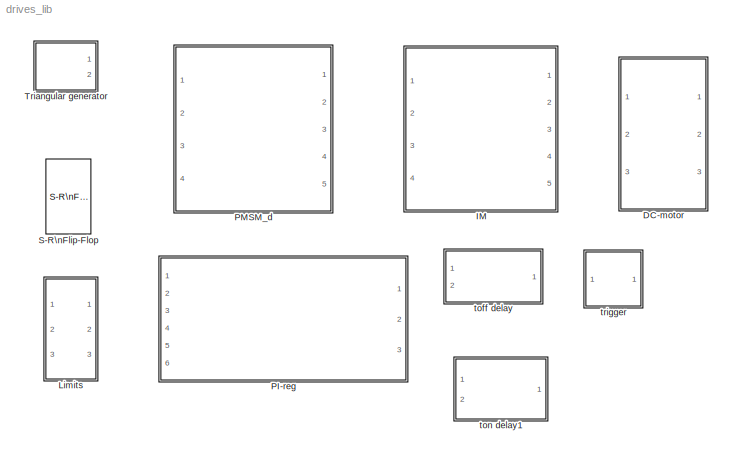
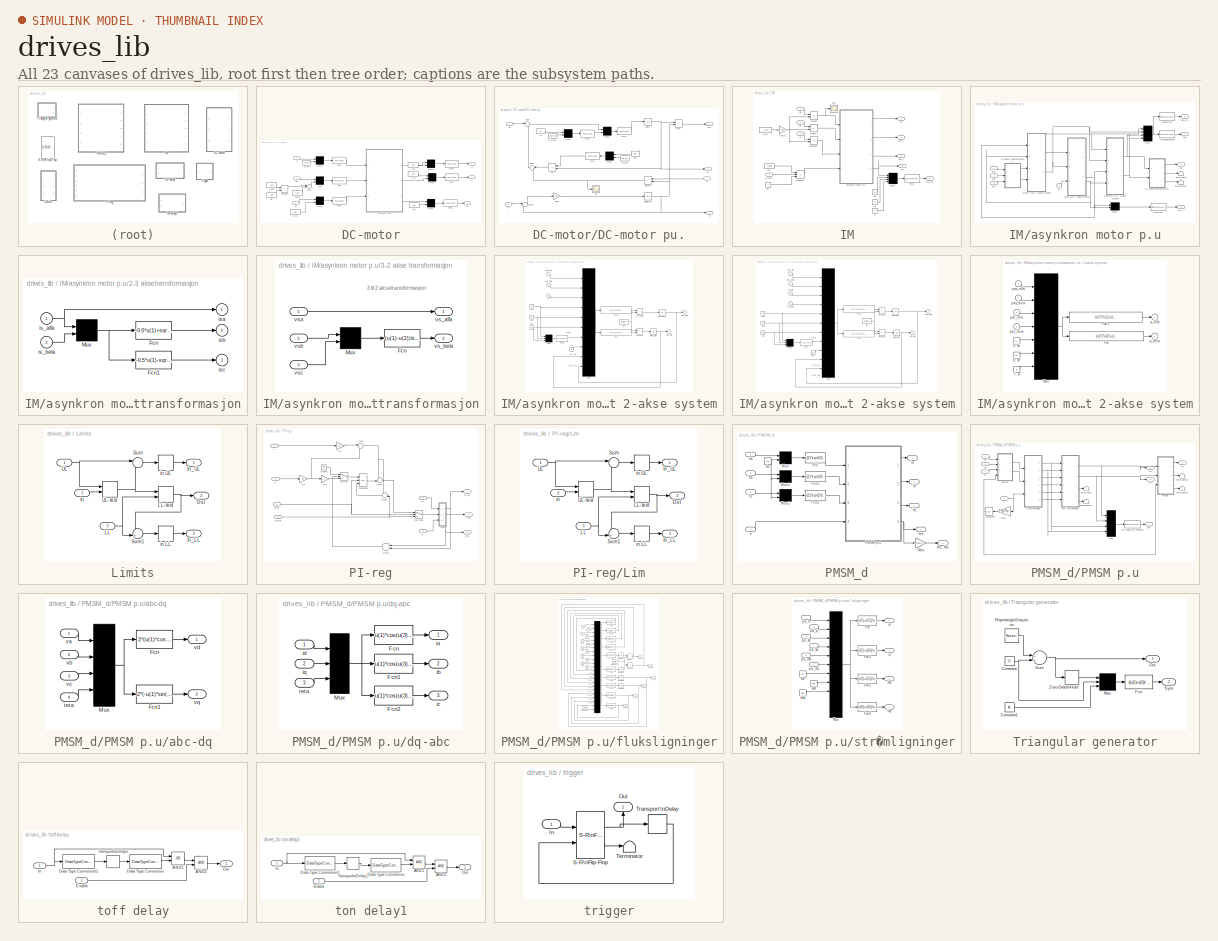
[diagram: thumbnail index - all 23 canvases of the model, root first then tree order]
MODEL drives_lib
KIND library
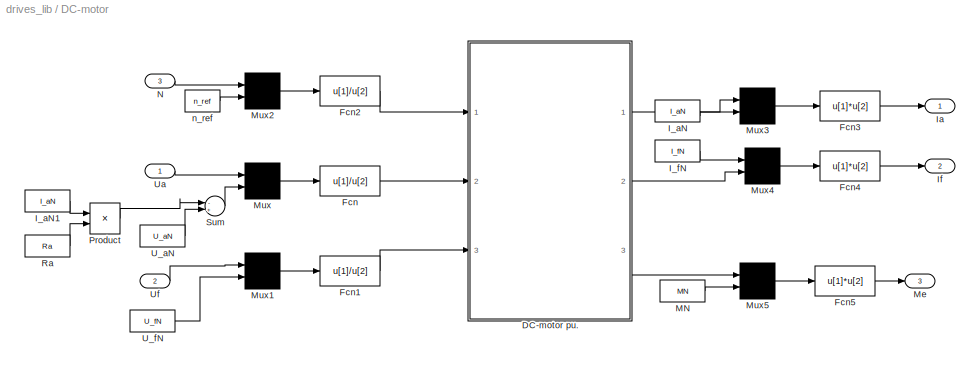
BLOCK [SubSystem] DC-motor
  MaskCallbackString = |||||||||
  MaskDescription = DC-motor med skalering til pu-verdier
  MaskDisplay = text(0.25,0.7,'Likestrøm')\ntext(0.25,0.6,'maskin')\n
  MaskEnableString = on,on,on,on,on,on,on,on,on,on
  MaskIconFrame = on
  MaskIconOpaque = off
  MaskIconRotate = none
  MaskIconUnits = normalized
  MaskPromptString = U_an, anker merkespenning [V]|I_aN, anker merkestrøm [A]|U_fn, felt merkespenning [V]|I_fn, felt merkestrøm [A]|n_ref, merketurtall [o/min]|Ra_ref, basismotstand [ohm]|MN, merkemoment [Nm]|Ra, ankermotstand [ohm]|La, anker induktans [H]|Tf, tidskonstant i feltkrets [sek]
  MaskStyleString = edit,edit,edit,edit,edit,edit,edit,edit,edit,edit
  MaskTabNameString = ,,,,,,,,,
  MaskToolTipString = on,on,on,on,on,on,on,on,on,on
  MaskTunableValueString = on,on,on,on,on,on,on,on,on,on
  MaskValueString = 400|2.5|310|7|1000|160|8|0.5|0.005|0.1
  MaskVarAliasString = ,,,,,,,,,
  MaskVariables = U_aN=@1;I_aN=@2;U_fN=@3;I_fN=@4;n_ref=@5;Ra_ref=@6;MN=@7;Ra=@8;La=@9;Tf=@10;
  MaskVisibilityString = on,on,on,on,on,on,on,on,on,on
  MinAlgLoopOccurrences = off
  Ports = [3, 3]
  RTWSystemCode = Auto
  TreatAsAtomicUnit = off
BLOCK [SubSystem] DC-motor/DC-motor pu.
  MinAlgLoopOccurrences = off
  Ports = [3, 3]
  RTWSystemCode = Auto
  TreatAsAtomicUnit = off
BLOCK [Fcn] DC-motor/DC-motor pu./Fcn2
  Expr = u[1]/u[2]
BLOCK [Fcn] DC-motor/DC-motor pu./Fcn3
  Expr = u[1]/u[2]
BLOCK [Fcn] DC-motor/DC-motor pu./Fcn4
  Expr = u[1]/u[2]
BLOCK [Gain] DC-motor/DC-motor pu./Gain
  Gain = 1/Tf
BLOCK [Constant] DC-motor/DC-motor pu./La
  Value = La
BLOCK [Mux] DC-motor/DC-motor pu./Mux2
  Inputs = 2
  Ports = [2, 1]
BLOCK [Mux] DC-motor/DC-motor pu./Mux3
  Inputs = 2
  Ports = [2, 1]
BLOCK [Mux] DC-motor/DC-motor pu./Mux4
  Inputs = 2
  Ports = [2, 1]
BLOCK [Constant] DC-motor/DC-motor pu./Ra
  Value = Ra
BLOCK [Constant] DC-motor/DC-motor pu./Ra_ref
  Value = Ra_ref
BLOCK [Constant] DC-motor/DC-motor pu./Ra_ref1
  Value = Ra_ref
BLOCK [Sum] DC-motor/DC-motor pu./Sum
  IconShape = round
  Inputs = |+-
  Ports = [2, 1]
BLOCK [Sum] DC-motor/DC-motor pu./Sum2
  IconShape = round
  Inputs = |+-
  Ports = [2, 1]
BLOCK [Sum] DC-motor/DC-motor pu./Sum3
  IconShape = round
  Inputs = |++
  Ports = [2, 1]
BLOCK [Integrator] DC-motor/DC-motor pu./dia//dt
  Ports = [1, 1]
BLOCK [Integrator] DC-motor/DC-motor pu./dpsiaf//dt
  LimitOutput = on
  LowerSaturationLimit = 0
  Ports = [1, 1]
BLOCK [Scope] DC-motor/DC-motor pu./ea
  DataFormat = Structure
  NumInputPorts = 1
  Ports = [1]
  YMax = 2
  YMin = 0
  ZoomMode = yonly
BLOCK [Outport] DC-motor/DC-motor pu./i_f
  IconDisplay = Port number
  Port = 2
BLOCK [Outport] DC-motor/DC-motor pu./ia
  IconDisplay = Port number
BLOCK [Outport] DC-motor/DC-motor pu./me
  IconDisplay = Port number
  Port = 3
BLOCK [Product] DC-motor/DC-motor pu./me1
  Ports = [2, 1]
BLOCK [Inport] DC-motor/DC-motor pu./n
  IconDisplay = Port number
  LatchInput = off
  Port = 1
BLOCK [Product] DC-motor/DC-motor pu./psifa*n
  Ports = [2, 1]
BLOCK [Product] DC-motor/DC-motor pu./ra
  Ports = [2, 1]
BLOCK [Inport] DC-motor/DC-motor pu./ua
  IconDisplay = Port number
  LatchInput = off
  Port = 2
BLOCK [Inport] DC-motor/DC-motor pu./uf
  IconDisplay = Port number
  LatchInput = off
  Port = 3
BLOCK [Fcn] DC-motor/Fcn
  Expr = u[1]/u[2]
BLOCK [Fcn] DC-motor/Fcn1
  Expr = u[1]/u[2]
BLOCK [Fcn] DC-motor/Fcn2
  Expr = u[1]/u[2]
BLOCK [Fcn] DC-motor/Fcn3
  Expr = u[1]*u[2]
BLOCK [Fcn] DC-motor/Fcn4
  Expr = u[1]*u[2]
BLOCK [Fcn] DC-motor/Fcn5
  Expr = u[1]*u[2]
BLOCK [Constant] DC-motor/I_aN
  Value = I_aN
BLOCK [Constant] DC-motor/I_aN1
  Value = I_aN
BLOCK [Constant] DC-motor/I_fN
  Value = I_fN
BLOCK [Outport] DC-motor/Ia
  IconDisplay = Port number
  InitialOutput = 0
BLOCK [Outport] DC-motor/If
  IconDisplay = Port number
  InitialOutput = 0
  Port = 2
BLOCK [Constant] DC-motor/MN
  Value = MN
BLOCK [Outport] DC-motor/Me
  IconDisplay = Port number
  InitialOutput = 0
  Port = 3
BLOCK [Mux] DC-motor/Mux
  Inputs = 2
  Ports = [2, 1]
BLOCK [Mux] DC-motor/Mux1
  Inputs = 2
  Ports = [2, 1]
BLOCK [Mux] DC-motor/Mux2
  Inputs = 2
  Ports = [2, 1]
BLOCK [Mux] DC-motor/Mux3
  Inputs = 2
  Ports = [2, 1]
BLOCK [Mux] DC-motor/Mux4
  Inputs = 2
  Ports = [2, 1]
BLOCK [Mux] DC-motor/Mux5
  Inputs = 2
  Ports = [2, 1]
BLOCK [Inport] DC-motor/N
  IconDisplay = Port number
  LatchInput = off
  Port = 3
BLOCK [Product] DC-motor/Product
  Ports = [2, 1]
BLOCK [Constant] DC-motor/Ra
  Value = Ra
BLOCK [Sum] DC-motor/Sum
  Inputs = -+
  Ports = [2, 1]
BLOCK [Constant] DC-motor/U_aN
  Value = U_aN
BLOCK [Constant] DC-motor/U_fN
  Value = U_fN
BLOCK [Inport] DC-motor/Ua
  IconDisplay = Port number
  LatchInput = off
  Port = 1
BLOCK [Inport] DC-motor/Uf
  IconDisplay = Port number
  LatchInput = off
  Port = 2
BLOCK [Constant] DC-motor/n_ref
  Value = n_ref
BLOCK [SubSystem] IM
  MaskCallbackString = ||||||||
  MaskDescription = Denne modulen er en asynkronmotormodul (kortslutningsmotor).\nModulen er basert paa invers-gamma transformasjonen.\nTilstandsvariable er stator strom i alfa og beta akse, og\nrotor fluks i alfa og beta akse.
  MaskDisplay = text(0.20,0.9,'Induction machine')\n\n\nplot([0.2500    0.2600    0.2700    0.2900    0.3100    0.3300    0.3600    0.3900    0.4200    0.4600    0.5000    0.5400    0.5800    0.6100    0.6400    0.6700    0.6900    0.7100    0.7300    0.7400    0.7500], [0.6000    0.6700    0.6980    0.7356    0.7625    0.7833    0.8071    0.8245    0.8369    0.8468    0.8500    0.8468    0.8369    0.8245    0.80...<+1659ch>
  MaskEnableString = on,on,on,on,on,on,on,on,on
  MaskIconFrame = on
  MaskIconOpaque = off
  MaskIconRotate = none
  MaskIconUnits = normalized
  MaskPromptString = Sn, merkeeffekt [VA]|Un, merke linjespenning [V]|fn, merkefrevens [Hz]|p, antall polpar|rs, statorresistans [p.u]|rr, rotorresistans [p.u]|xh, magnetiseringsresistans [p.u]|xs, statorreaktans|xr, rotorreaktans
  MaskStyleString = edit,edit,edit,edit,edit,edit,edit,edit,edit
  MaskTabNameString = ,,,,,,,,
  MaskToolTipString = on,on,on,on,on,on,on,on,on
  MaskTunableValueString = on,on,on,on,on,on,on,on,on
  MaskValueString = 10000|400|50|2|0.04|0.03|2.273|2.375|2.385
  MaskVarAliasString = ,,,,,,,,
  MaskVariables = Sn=@1;Un=@2;fn=@3;p=@4;rs=@5;rr=@6;xh=@7;xs=@8;xr=@9;
  MaskVisibilityString = on,on,on,on,on,on,on,on,on
  MinAlgLoopOccurrences = off
  Ports = [4, 5]
  RTWSystemCode = Auto
  TreatAsAtomicUnit = off
BLOCK [Constant] IM/1//Un
  Value = 1/Un
BLOCK [Fcn] IM/Fcn1
  Expr = u(1)*u(2)*u(4)/(2*pi*u(3))
BLOCK [Gain] IM/Gain1
  Gain = sqrt(3)/sqrt(2)
BLOCK [Outport] IM/Ia
  IconDisplay = Port number
  InitialOutput = 0
BLOCK [Mux] IM/Mux1
  Ports = [4, 1]
BLOCK [Product] IM/Product
  Ports = [2, 1]
BLOCK [Product] IM/Product1
  Ports = [2, 1]
BLOCK [Product] IM/Product2
  Ports = [2, 1]
BLOCK [Product] IM/Product3
  Inputs = /**
  Ports = [3, 1]
BLOCK [Constant] IM/Sn
  Value = Sn
BLOCK [Inport] IM/Va
  IconDisplay = Port number
  LatchInput = off
  Port = 1
BLOCK [Inport] IM/Vb
  IconDisplay = Port number
  LatchInput = off
  Port = 2
BLOCK [Inport] IM/Vc
  IconDisplay = Port number
  LatchInput = off
  Port = 3
BLOCK [SubSystem] IM/asynkron motor p.u
  MinAlgLoopOccurrences = off
  Ports = [4, 4]
  RTWSystemCode = Auto
  TreatAsAtomicUnit = off
BLOCK [SubSystem] IM/asynkron motor p.u/2-3 aksetransformasjon
  MinAlgLoopOccurrences = off
  Ports = [2, 3]
  RTWSystemCode = Auto
  TreatAsAtomicUnit = off
BLOCK [Fcn] IM/asynkron motor p.u/2-3 aksetransformasjon/Fcn
  Expr = -0.5*u(1)+sqrt(3)*u(2)/2
BLOCK [Fcn] IM/asynkron motor p.u/2-3 aksetransformasjon/Fcn1
  Expr = -0.5*u(1)-sqrt(3)*u(2)/2
BLOCK [Mux] IM/asynkron motor p.u/2-3 aksetransformasjon/Mux
  Inputs = 2
  Ports = [2, 1]
BLOCK [Inport] IM/asynkron motor p.u/2-3 aksetransformasjon/is_alfa
  IconDisplay = Port number
  LatchInput = off
  Port = 1
BLOCK [Inport] IM/asynkron motor p.u/2-3 aksetransformasjon/is_beta
  IconDisplay = Port number
  LatchInput = off
  Port = 2
BLOCK [Outport] IM/asynkron motor p.u/2-3 aksetransformasjon/isa
  IconDisplay = Port number
  InitialOutput = 0
BLOCK [Outport] IM/asynkron motor p.u/2-3 aksetransformasjon/isb
  IconDisplay = Port number
  InitialOutput = 0
  Port = 2
BLOCK [Outport] IM/asynkron motor p.u/2-3 aksetransformasjon/isc
  IconDisplay = Port number
  InitialOutput = 0
  Port = 3
BLOCK [SubSystem] IM/asynkron motor p.u/3-2 akse transformasjon
  MinAlgLoopOccurrences = off
  Ports = [3, 2]
  RTWSystemCode = Auto
  TreatAsAtomicUnit = off
BLOCK [Fcn] IM/asynkron motor p.u/3-2 akse transformasjon/Fcn
  Expr = (u(1)-u(2))/sqrt(3)
BLOCK [Mux] IM/asynkron motor p.u/3-2 akse transformasjon/Mux
  Inputs = 2
  Ports = [2, 1]
BLOCK [Outport] IM/asynkron motor p.u/3-2 akse transformasjon/vs_alfa
  IconDisplay = Port number
  InitialOutput = 0
BLOCK [Outport] IM/asynkron motor p.u/3-2 akse transformasjon/vs_beta
  IconDisplay = Port number
  InitialOutput = 0
  Port = 2
BLOCK [Inport] IM/asynkron motor p.u/3-2 akse transformasjon/vsa
  IconDisplay = Port number
  LatchInput = off
  Port = 1
BLOCK [Inport] IM/asynkron motor p.u/3-2 akse transformasjon/vsb
  IconDisplay = Port number
  LatchInput = off
  Port = 2
BLOCK [Inport] IM/asynkron motor p.u/3-2 akse transformasjon/vsc
  IconDisplay = Port number
  LatchInput = off
  Port = 3
BLOCK [Mux] IM/asynkron motor p.u/Mux
  Ports = [4, 1]
BLOCK [Mux] IM/asynkron motor p.u/Mux1
  Inputs = 2
  Ports = [2, 1]
BLOCK [Terminator] IM/asynkron motor p.u/Terminator
BLOCK [Terminator] IM/asynkron motor p.u/Terminator1
BLOCK [Outport] IM/asynkron motor p.u/isa
  IconDisplay = Port number
  InitialOutput = 0
BLOCK [Fcn] IM/asynkron motor p.u/luftgapmoment 
  Expr = u(1)*u(4)-u(2)*u(3)
BLOCK [Outport] IM/asynkron motor p.u/me
  IconDisplay = Port number
  InitialOutput = 0
  Port = 4
BLOCK [Inport] IM/asynkron motor p.u/n
  IconDisplay = Port number
  LatchInput = off
  Port = 4
BLOCK [Outport] IM/asynkron motor p.u/psi_r
  IconDisplay = Port number
  InitialOutput = 0
  Port = 3
BLOCK [Outport] IM/asynkron motor p.u/psi_s\n
  IconDisplay = Port number
  InitialOutput = 0
  Port = 2
BLOCK [Fcn] IM/asynkron motor p.u/rotorflux
  Expr = sqrt(u(1)*u(1)+u(2)*u(2))
BLOCK [SubSystem] IM/asynkron motor p.u/rotorflux i 2-akse system
  MinAlgLoopOccurrences = off
  Ports = [3, 2]
  RTWSystemCode = Auto
  TreatAsAtomicUnit = off
BLOCK [Constant] IM/asynkron motor p.u/rotorflux i 2-akse system/4: xh
  Value = xh
BLOCK [Constant] IM/asynkron motor p.u/rotorflux i 2-akse system/5 :xr
  Value = xr
BLOCK [Constant] IM/asynkron motor p.u/rotorflux i 2-akse system/6: xs
  Value = xs
BLOCK [Constant] IM/asynkron motor p.u/rotorflux i 2-akse system/8: rr
  Value = rr
BLOCK [Fcn] IM/asynkron motor p.u/rotorflux i 2-akse system/Fcn
  Expr = -u(8)*u(9)/(u(7)*u(5))-u(3)*u(10)+u(8)*u(4)*u(1)/(u(7)*u(5)*u(6))
BLOCK [Fcn] IM/asynkron motor p.u/rotorflux i 2-akse system/Fcn2
  Expr = -u(8)*u(10)/(u(7)*u(5))+u(3)*u(9)+u(8)*u(4)*u(2)/(u(7)*u(5)*u(6))
BLOCK [Fcn] IM/asynkron motor p.u/rotorflux i 2-akse system/Fcn3
  Expr = 1-(u(1)*u(1)/(u(2)*u(3)))
BLOCK [Integrator] IM/asynkron motor p.u/rotorflux i 2-akse system/Integrator
  Ports = [1, 1]
BLOCK [Integrator] IM/asynkron motor p.u/rotorflux i 2-akse system/Integrator1
  Ports = [1, 1]
BLOCK [Mux] IM/asynkron motor p.u/rotorflux i 2-akse system/Mux
  Inputs = 10
  Ports = [10, 1]
BLOCK [Mux] IM/asynkron motor p.u/rotorflux i 2-akse system/Mux1
  Inputs = 3
  Ports = [3, 1]
BLOCK [Product] IM/asynkron motor p.u/rotorflux i 2-akse system/Product
  Ports = [2, 1]
BLOCK [Product] IM/asynkron motor p.u/rotorflux i 2-akse system/Product1
  Ports = [2, 1]
BLOCK [Inport] IM/asynkron motor p.u/rotorflux i 2-akse system/n
  IconDisplay = Port number
  LatchInput = off
  Port = 3
BLOCK [Outport] IM/asynkron motor p.u/rotorflux i 2-akse system/psir_alfa
  IconDisplay = Port number
  InitialOutput = 0
BLOCK [Outport] IM/asynkron motor p.u/rotorflux i 2-akse system/psir_beta
  IconDisplay = Port number
  InitialOutput = 0
  Port = 2
BLOCK [Inport] IM/asynkron motor p.u/rotorflux i 2-akse system/psis_alfa
  IconDisplay = Port number
  LatchInput = off
  Port = 1
BLOCK [Inport] IM/asynkron motor p.u/rotorflux i 2-akse system/psis_beta
  IconDisplay = Port number
  LatchInput = off
  Port = 2
BLOCK [Constant] IM/asynkron motor p.u/rotorflux i 2-akse system/wn
  Value = 2*pi*fn
BLOCK [SubSystem] IM/asynkron motor p.u/stator flux i 2-akse system
  MinAlgLoopOccurrences = off
  Ports = [4, 2]
  RTWSystemCode = Auto
  TreatAsAtomicUnit = off
BLOCK [Constant] IM/asynkron motor p.u/stator flux i 2-akse system/5: xh
  Value = xh
BLOCK [Constant] IM/asynkron motor p.u/stator flux i 2-akse system/6 :xr
  Value = xr
BLOCK [Constant] IM/asynkron motor p.u/stator flux i 2-akse system/7: xs
  Value = xs
BLOCK [Constant] IM/asynkron motor p.u/stator flux i 2-akse system/9: rs
  Value = rs
BLOCK [Fcn] IM/asynkron motor p.u/stator flux i 2-akse system/Fcn
  Expr = u(3)-u(9)*u(10)/(u(8)*u(7))+u(9)*u(5)*u(1)/(u(8)*u(7)*u(6))
BLOCK [Fcn] IM/asynkron motor p.u/stator flux i 2-akse system/Fcn2
  Expr = u(4)-u(9)*u(11)/(u(8)*u(7))+u(9)*u(5)*u(2)/(u(8)*u(7)*u(6))
BLOCK [Fcn] IM/asynkron motor p.u/stator flux i 2-akse system/Fcn3
  Expr = 1-(u(1)*u(1)/(u(2)*u(3)))
BLOCK [Integrator] IM/asynkron motor p.u/stator flux i 2-akse system/Integrator
  Ports = [1, 1]
BLOCK [Integrator] IM/asynkron motor p.u/stator flux i 2-akse system/Integrator1
  Ports = [1, 1]
BLOCK [Mux] IM/asynkron motor p.u/stator flux i 2-akse system/Mux
  Inputs = 11
  Ports = [11, 1]
BLOCK [Mux] IM/asynkron motor p.u/stator flux i 2-akse system/Mux1
  Inputs = 3
  Ports = [3, 1]
BLOCK [Product] IM/asynkron motor p.u/stator flux i 2-akse system/Product
  Ports = [2, 1]
BLOCK [Product] IM/asynkron motor p.u/stator flux i 2-akse system/Product1
  Ports = [2, 1]
BLOCK [Inport] IM/asynkron motor p.u/stator flux i 2-akse system/psir_alfa
  IconDisplay = Port number
  LatchInput = off
  Port = 1
BLOCK [Inport] IM/asynkron motor p.u/stator flux i 2-akse system/psir_beta
  IconDisplay = Port number
  LatchInput = off
  Port = 2
BLOCK [Outport] IM/asynkron motor p.u/stator flux i 2-akse system/psis_alfa
  IconDisplay = Port number
  InitialOutput = 0
BLOCK [Outport] IM/asynkron motor p.u/stator flux i 2-akse system/psis_beta
  IconDisplay = Port number
  InitialOutput = 0
  Port = 2
BLOCK [Inport] IM/asynkron motor p.u/stator flux i 2-akse system/vs_alfa
  IconDisplay = Port number
  LatchInput = off
  Port = 3
BLOCK [Inport] IM/asynkron motor p.u/stator flux i 2-akse system/vs_beta
  IconDisplay = Port number
  LatchInput = off
  Port = 4
BLOCK [Constant] IM/asynkron motor p.u/stator flux i 2-akse system/wn
  Value = 2*pi*fn
BLOCK [Fcn] IM/asynkron motor p.u/statorflux
  Expr = sqrt(u(1)*u(1)+u(2)*u(2))
BLOCK [SubSystem] IM/asynkron motor p.u/statorstrøm i  2-akse system
  MinAlgLoopOccurrences = off
  Ports = [4, 2]
  RTWSystemCode = Auto
  TreatAsAtomicUnit = off
BLOCK [Constant] IM/asynkron motor p.u/statorstrøm i  2-akse system/5: xs
  Value = xs
BLOCK [Constant] IM/asynkron motor p.u/statorstrøm i  2-akse system/6: xh
  Value = xh
BLOCK [Constant] IM/asynkron motor p.u/statorstrøm i  2-akse system/7: xr
  Value = xr
BLOCK [Fcn] IM/asynkron motor p.u/statorstrøm i  2-akse system/Fcn
  Expr = (u(7)*u(2)-u(6)*u(4))/(u(5)*u(7)-u(6)*u(6))
BLOCK [Fcn] IM/asynkron motor p.u/statorstrøm i  2-akse system/Fcn1
  Expr = (u(7)*u(1)-u(6)*u(3))/(u(5)*u(7)-u(6)*u(6))
BLOCK [Mux] IM/asynkron motor p.u/statorstrøm i  2-akse system/Mux
  Inputs = 7
  Ports = [7, 1]
BLOCK [Outport] IM/asynkron motor p.u/statorstrøm i  2-akse system/is_alfa
  IconDisplay = Port number
  InitialOutput = 0
BLOCK [Outport] IM/asynkron motor p.u/statorstrøm i  2-akse system/is_beta
  IconDisplay = Port number
  InitialOutput = 0
  Port = 2
BLOCK [Inport] IM/asynkron motor p.u/statorstrøm i  2-akse system/psir_alfa
  IconDisplay = Port number
  LatchInput = off
  Port = 3
BLOCK [Inport] IM/asynkron motor p.u/statorstrøm i  2-akse system/psir_beta
  IconDisplay = Port number
  LatchInput = off
  Port = 4
BLOCK [Inport] IM/asynkron motor p.u/statorstrøm i  2-akse system/psis_alfa
  IconDisplay = Port number
  LatchInput = off
  Port = 1
BLOCK [Inport] IM/asynkron motor p.u/statorstrøm i  2-akse system/psis_beta
  IconDisplay = Port number
  LatchInput = off
  Port = 2
BLOCK [Inport] IM/asynkron motor p.u/vsa
  IconDisplay = Port number
  LatchInput = off
  Port = 1
BLOCK [Inport] IM/asynkron motor p.u/vsb
  IconDisplay = Port number
  LatchInput = off
  Port = 2
BLOCK [Inport] IM/asynkron motor p.u/vsc
  IconDisplay = Port number
  LatchInput = off
  Port = 3
BLOCK [Constant] IM/fn
  Value = fn
BLOCK [Outport] IM/me
  IconDisplay = Port number
  InitialOutput = 0
  Port = 4
BLOCK [Outport] IM/me_Nm
  IconDisplay = Port number
  InitialOutput = 0
  Port = 5
BLOCK [Inport] IM/n_rad//s
  IconDisplay = Port number
  LatchInput = off
  Port = 4
BLOCK [Constant] IM/p
  Value = p
BLOCK [Constant] IM/p1
  Value = p
BLOCK [Outport] IM/psi_r
  IconDisplay = Port number
  InitialOutput = 0
  Port = 3
BLOCK [Outport] IM/psi_s
  IconDisplay = Port number
  InitialOutput = 0
  Port = 2
BLOCK [Scope] IM/vsa
  DataFormat = Array
  NumInputPorts = 1
  Ports = [1]
  TickLabels = on
  YMax = 15
  YMin = -25
  ZoomMode = xonly
BLOCK [Constant] IM/wn
  Value = 2*pi*fn
BLOCK [SubSystem] Limits
  MaskDisplay = plot([0.3 0.5 0.7 0.3], [0.1 0.3  0.1 0.1])\nplot([0.3 0.5 0.7 0.3], [0.9 0.7  0.9 0.9])
  MaskIconFrame = on
  MaskIconOpaque = on
  MaskIconRotate = none
  MaskIconUnits = normalized
  MinAlgLoopOccurrences = off
  Ports = [3, 3]
  RTWSystemCode = Auto
  TreatAsAtomicUnit = off
BLOCK [Inport] Limits/In
  IconDisplay = Port number
  LatchInput = off
  Port = 2
BLOCK [Outport] Limits/In_LL
  IconDisplay = Port number
  Port = 3
BLOCK [Outport] Limits/In_UL
  IconDisplay = Port number
BLOCK [Inport] Limits/LL
  IconDisplay = Port number
  LatchInput = off
  Port = 3
BLOCK [MinMax] Limits/LL-test
  Function = max
  Inputs = 2
  Ports = [2, 1]
BLOCK [Outport] Limits/Out
  IconDisplay = Port number
  Port = 2
BLOCK [Sum] Limits/Sum
  IconShape = round
  Inputs = |-+
  Ports = [2, 1]
BLOCK [Sum] Limits/Sum1
  IconShape = round
  Inputs = -+|
  Ports = [2, 1]
BLOCK [Inport] Limits/UL
  IconDisplay = Port number
  LatchInput = off
  Port = 1
BLOCK [MinMax] Limits/UL-test
  Function = min
  Inputs = 2
  Ports = [2, 1]
BLOCK [Relay] Limits/in LL
  OffSwitchValue = -eps
  OnSwitchValue = 0
BLOCK [Relay] Limits/in UL
  OffSwitchValue = -eps
  OnSwitchValue = 0
BLOCK [SubSystem] PI-reg
  MaskCallbackString = ||
  MaskDisplay = plot([0.2 0.8], [0.1 0.1])\nplot([0.2 0.2], [0.1 0.9])\nplot([0.75 0.8 0.75], [0.15 0.1 0.05])\nplot([0.175 0.2 0.225], [0.79 0.9 0.79])\n\nplot([0.2 0.75], [0.3 0.7])
  MaskEnableString = on,on,on
  MaskIconFrame = on
  MaskIconOpaque = off
  MaskIconRotate = none
  MaskIconUnits = normalized
  MaskPromptString = Kp|Kv|Ti
  MaskStyleString = edit,edit,edit
  MaskTabNameString = ,,
  MaskToolTipString = on,on,on
  MaskTunableValueString = on,on,on
  MaskValueString = 0.3234|0|12e-3
  MaskVarAliasString = ,,
  MaskVariables = Kp=@1;Kv=@2;Ti=@3;
  MaskVisibilityString = on,on,on
  MinAlgLoopOccurrences = off
  Ports = [6, 3]
  RTWSystemCode = Auto
  TreatAsAtomicUnit = off
BLOCK [Gain] PI-reg/1//Ti
  Gain = 1/Ti
BLOCK [Inport] PI-reg/Enbl
  IconDisplay = Port number
  LatchInput = off
  Port = 5
BLOCK [Ground] PI-reg/Ground
BLOCK [Inport] PI-reg/Initval
  IconDisplay = Port number
  LatchInput = off
  Port = 6
BLOCK [Integrator] PI-reg/Integrator
  ExternalReset = rising
  InitialConditionSource = external
  Ports = [3, 1]
BLOCK [Gain] PI-reg/Kp
  Gain = Kp
BLOCK [Gain] PI-reg/Kv
  Gain = Kv
BLOCK [Inport] PI-reg/LL
  IconDisplay = Port number
  LatchInput = off
  Port = 4
BLOCK [SubSystem] PI-reg/Lim
  MaskDisplay = plot([0.3 0.5 0.7 0.3], [0.1 0.3  0.1 0.1])\nplot([0.3 0.5 0.7 0.3], [0.9 0.7  0.9 0.9])
  MaskIconFrame = on
  MaskIconOpaque = on
  MaskIconRotate = none
  MaskIconUnits = normalized
  MinAlgLoopOccurrences = off
  Ports = [3, 3]
  RTWSystemCode = Auto
  TreatAsAtomicUnit = off
BLOCK [Inport] PI-reg/Lim/In
  IconDisplay = Port number
  LatchInput = off
  Port = 2
BLOCK [Outport] PI-reg/Lim/In_LL
  IconDisplay = Port number
  Port = 3
BLOCK [Outport] PI-reg/Lim/In_UL
  IconDisplay = Port number
BLOCK [Inport] PI-reg/Lim/LL
  IconDisplay = Port number
  LatchInput = off
  Port = 3
BLOCK [MinMax] PI-reg/Lim/LL-test
  Function = max
  Inputs = 2
  Ports = [2, 1]
BLOCK [Outport] PI-reg/Lim/Out
  IconDisplay = Port number
  Port = 2
BLOCK [Sum] PI-reg/Lim/Sum
  IconShape = round
  Inputs = |-+
  Ports = [2, 1]
BLOCK [Sum] PI-reg/Lim/Sum1
  IconShape = round
  Inputs = -+|
  Ports = [2, 1]
BLOCK [Inport] PI-reg/Lim/UL
  IconDisplay = Port number
  LatchInput = off
  Port = 1
BLOCK [MinMax] PI-reg/Lim/UL-test
  Function = min
  Inputs = 2
  Ports = [2, 1]
BLOCK [Relay] PI-reg/Lim/in LL
  OffSwitchValue = -eps
  OnSwitchValue = 0
BLOCK [Relay] PI-reg/Lim/in UL
  OffSwitchValue = -eps
  OnSwitchValue = 0
BLOCK [Outport] PI-reg/Out
  IconDisplay = Port number
  Port = 2
BLOCK [Sum] PI-reg/Sum
  IconShape = round
  Inputs = |++
  Ports = [2, 1]
BLOCK [Sum] PI-reg/Sum1
  IconShape = round
  Inputs = ++|
  Ports = [2, 1]
BLOCK [Sum] PI-reg/Sum2
  IconShape = round
  Inputs = -+|
  Ports = [2, 1]
BLOCK [Sum] PI-reg/Sum3
  Inputs = ++|
  Ports = [2, 1]
BLOCK [Switch] PI-reg/Switch
  Threshold = 0.1
BLOCK [Switch] PI-reg/Switch1
  Threshold = 0.5
BLOCK [Inport] PI-reg/UL
  IconDisplay = Port number
  LatchInput = off
  Port = 3
BLOCK [Inport] PI-reg/e
  IconDisplay = Port number
  LatchInput = off
  Port = 1
BLOCK [Outport] PI-reg/in_LL
  IconDisplay = Port number
  Port = 3
BLOCK [Outport] PI-reg/in_UL
  IconDisplay = Port number
BLOCK [Inport] PI-reg/v
  IconDisplay = Port number
  LatchInput = off
  Port = 2
BLOCK [SubSystem] PMSM_d
  MaskCallbackString = ||||||||||||
  MaskDescription = dq-transformert modell av en permanentmagnetisert\nsynkronmotor (PMSM) med dempeviklinger.
  MaskDisplay = text(0.15,0.9,'PM Synch. Machine')\ntext(0.2,0.25,'w/damperwindings')\n\nplot([0.2500    0.2600    0.2700    0.2900    0.3100    0.3300    0.3600    0.3900    0.4200    0.4600    0.5000    0.5400    0.5800    0.6100    0.6400    0.6700    0.6900    0.7100    0.7300    0.7400    0.7500], [0.6000    0.6700    0.6980    0.7356    0.7625    0.7833    0.8071    0.8245    0.8369    0.8468    0.8500    0...<+1692ch>
  MaskEnableString = on,on,on,on,on,on,on,on,on,on,on,on,on
  MaskIconFrame = on
  MaskIconOpaque = off
  MaskIconRotate = none
  MaskIconUnits = normalized
  MaskPromptString = Sn, merkeeffekt [VA]|p, antall polpar|Un, merkespenning (line-line rms) [V]|fn, merkefrekvens [Hz]|xd, reaktans i d-akse [p.u]|xq, reaktans i q-akse [p.u]|x_ls, lekkreaktans i stator [p.u]|x_lkd, lekkreaktans i dempevikl. d-akse [p.u]|x_lkq, lekkreaktans i dempevikl. q-akse [p.u]|rs, pr. fase statorresistans [p.u]|r_kd, resistans i dempevikl. d-akse [p.u]|r_kq, resistans i dempevikl. q-akse [p.u]|...<+35ch>
  MaskStyleString = edit,edit,edit,edit,edit,edit,edit,edit,edit,edit,edit,edit,edit
  MaskTabNameString = ,,,,,,,,,,,,
  MaskToolTipString = on,on,on,on,on,on,on,on,on,on,on,on,on
  MaskTunableValueString = on,on,on,on,on,on,on,on,on,on,on,on,on
  MaskValueString = 3000|4|230|50|0.5|1.0|0.06|0.15|0.15|0.02|0.05|0.1|1.0
  MaskVarAliasString = ,,,,,,,,,,,,
  MaskVariables = Sn=@1;p=@2;Un=@3;fn=@4;xd=@5;xq=@6;xls=@7;xlkd=@8;xlkq=@9;rs=@10;rkd=@11;rkq=@12;im=@13;
  MaskVisibilityString = on,on,on,on,on,on,on,on,on,on,on,on,on
  MinAlgLoopOccurrences = off
  Ports = [4, 5]
  RTWSystemCode = Auto
  TreatAsAtomicUnit = off
BLOCK [Fcn] PMSM_d/Fcn
  Expr = u(1)*sqrt(3)/(sqrt(2)*u(2))
BLOCK [Fcn] PMSM_d/Fcn1
  Expr = u(1)*sqrt(3)/(sqrt(2)*u(2))
BLOCK [Fcn] PMSM_d/Fcn2
  Expr = u(1)*sqrt(3)/(sqrt(2)*u(2))
BLOCK [Gain] PMSM_d/Gain
  Gain = Sn*p/(2*pi*fn)
BLOCK [Outport] PMSM_d/Me_Nm
  IconDisplay = Port number
  InitialOutput = 0
  Port = 5
BLOCK [Mux] PMSM_d/Mux
  Inputs = 2
  Ports = [2, 1]
BLOCK [Mux] PMSM_d/Mux1
  Inputs = 2
  Ports = [2, 1]
BLOCK [Mux] PMSM_d/Mux2
  Inputs = 2
  Ports = [2, 1]
BLOCK [SubSystem] PMSM_d/PMSM p.u
  MinAlgLoopOccurrences = off
  Ports = [4, 4]
  RTWSystemCode = Auto
  TreatAsAtomicUnit = off
BLOCK [Gain] PMSM_d/PMSM p.u/Gain
  Gain = 2*pi*fn
BLOCK [Integrator] PMSM_d/PMSM p.u/Integrator
  Ports = [1, 1]
BLOCK [Mux] PMSM_d/PMSM p.u/Mux
  Ports = [4, 1]
BLOCK [Terminator] PMSM_d/PMSM p.u/Terminator
BLOCK [Terminator] PMSM_d/PMSM p.u/Terminator1
BLOCK [Terminator] PMSM_d/PMSM p.u/Terminator2
BLOCK [Terminator] PMSM_d/PMSM p.u/Terminator3
BLOCK [SubSystem] PMSM_d/PMSM p.u/abc-dq
  MinAlgLoopOccurrences = off
  Ports = [4, 2]
  RTWSystemCode = Auto
  TreatAsAtomicUnit = off
BLOCK [Fcn] PMSM_d/PMSM p.u/abc-dq/Fcn
  Expr = 2*(u(1)*cos(u(4))+u(2)*cos(u(4)-2*pi/3)+u(3)*cos(u(4)+2*pi/3))/3
BLOCK [Fcn] PMSM_d/PMSM p.u/abc-dq/Fcn1
  Expr = 2*(-u(1)*sin(u(4))-u(2)*sin(u(4)-2*pi/3)-u(3)*sin(u(4)+2*pi/3))/3
BLOCK [Mux] PMSM_d/PMSM p.u/abc-dq/Mux
  Ports = [4, 1]
BLOCK [Inport] PMSM_d/PMSM p.u/abc-dq/teta
  IconDisplay = Port number
  LatchInput = off
  Port = 4
BLOCK [Inport] PMSM_d/PMSM p.u/abc-dq/va
  IconDisplay = Port number
  LatchInput = off
  Port = 1
BLOCK [Inport] PMSM_d/PMSM p.u/abc-dq/vb
  IconDisplay = Port number
  LatchInput = off
  Port = 2
BLOCK [Inport] PMSM_d/PMSM p.u/abc-dq/vc
  IconDisplay = Port number
  LatchInput = off
  Port = 3
BLOCK [Outport] PMSM_d/PMSM p.u/abc-dq/vd
  IconDisplay = Port number
  InitialOutput = 0
BLOCK [Outport] PMSM_d/PMSM p.u/abc-dq/vq
  IconDisplay = Port number
  InitialOutput = 0
  Port = 2
BLOCK [SubSystem] PMSM_d/PMSM p.u/dq-abc
  MinAlgLoopOccurrences = off
  Ports = [3, 3]
  RTWSystemCode = Auto
  TreatAsAtomicUnit = off
BLOCK [Fcn] PMSM_d/PMSM p.u/dq-abc/Fcn
  Expr = u(1)*cos(u(3))-u(2)*sin(u(3))
BLOCK [Fcn] PMSM_d/PMSM p.u/dq-abc/Fcn1
  Expr = u(1)*cos(u(3)-2*pi/3)-u(2)*sin(u(3)-2*pi/3)
BLOCK [Fcn] PMSM_d/PMSM p.u/dq-abc/Fcn2
  Expr = u(1)*cos(u(3)+2*pi/3)-u(2)*sin(u(3)+2*pi/3)
BLOCK [Mux] PMSM_d/PMSM p.u/dq-abc/Mux
  Inputs = 3
  Ports = [3, 1]
BLOCK [Outport] PMSM_d/PMSM p.u/dq-abc/ia
  IconDisplay = Port number
  InitialOutput = 0
BLOCK [Outport] PMSM_d/PMSM p.u/dq-abc/ib
  IconDisplay = Port number
  InitialOutput = 0
  Port = 2
BLOCK [Outport] PMSM_d/PMSM p.u/dq-abc/ic
  IconDisplay = Port number
  InitialOutput = 0
  Port = 3
BLOCK [Inport] PMSM_d/PMSM p.u/dq-abc/id
  IconDisplay = Port number
  LatchInput = off
  Port = 1
BLOCK [Inport] PMSM_d/PMSM p.u/dq-abc/iq
  IconDisplay = Port number
  LatchInput = off
  Port = 2
BLOCK [Inport] PMSM_d/PMSM p.u/dq-abc/teta
  IconDisplay = Port number
  LatchInput = off
  Port = 3
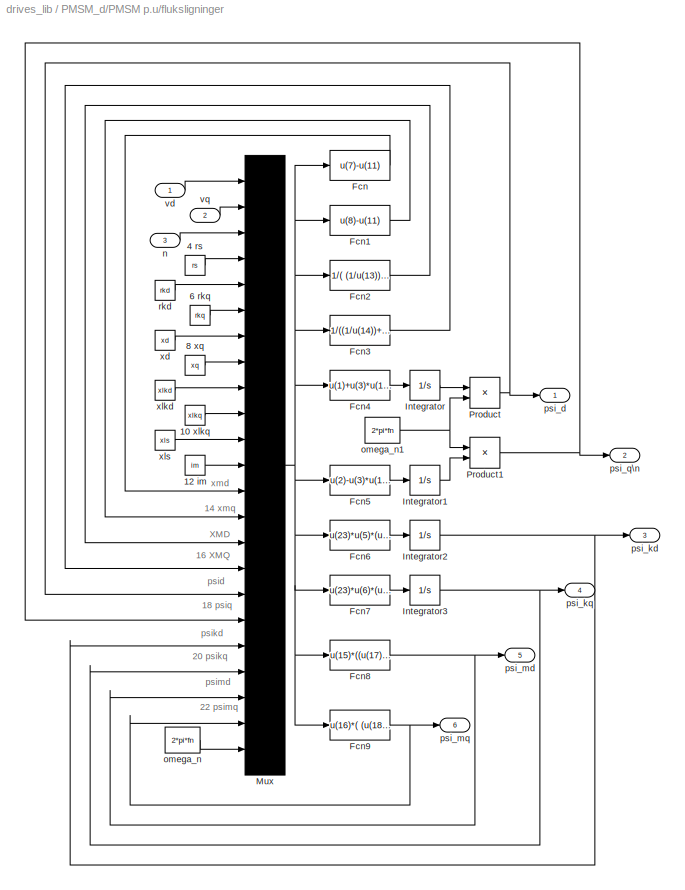
BLOCK [SubSystem] PMSM_d/PMSM p.u/fluksligninger
  MinAlgLoopOccurrences = off
  Ports = [3, 6]
  RTWSystemCode = Auto
  TreatAsAtomicUnit = off
BLOCK [Constant] PMSM_d/PMSM p.u/fluksligninger/  xlkd
  Value = xlkd
BLOCK [Constant] PMSM_d/PMSM p.u/fluksligninger/  xls
  Value = xls
BLOCK [Constant] PMSM_d/PMSM p.u/fluksligninger/ rkd
  Value = rkd
BLOCK [Constant] PMSM_d/PMSM p.u/fluksligninger/ xd
  Value = xd
BLOCK [Constant] PMSM_d/PMSM p.u/fluksligninger/10 xlkq
  Value = xlkq
BLOCK [Constant] PMSM_d/PMSM p.u/fluksligninger/12 im
  Value = im
BLOCK [Constant] PMSM_d/PMSM p.u/fluksligninger/4 rs
  Value = rs
BLOCK [Constant] PMSM_d/PMSM p.u/fluksligninger/6 rkq
  Value = rkq
BLOCK [Constant] PMSM_d/PMSM p.u/fluksligninger/8 xq
  Value = xq
BLOCK [Fcn] PMSM_d/PMSM p.u/fluksligninger/Fcn
  Expr = u(7)-u(11)
BLOCK [Fcn] PMSM_d/PMSM p.u/fluksligninger/Fcn1
  Expr = u(8)-u(11)
BLOCK [Fcn] PMSM_d/PMSM p.u/fluksligninger/Fcn2
  Expr = 1/( (1/u(13))+(1/u(9))+(1/u(11)) )
BLOCK [Fcn] PMSM_d/PMSM p.u/fluksligninger/Fcn3
  Expr = 1/((1/u(14))+(1/u(10))+(1/u(11)))
BLOCK [Fcn] PMSM_d/PMSM p.u/fluksligninger/Fcn4
  Expr = u(1)+u(3)*u(18)+u(4)*(u(21)-u(17))/u(11)
BLOCK [Fcn] PMSM_d/PMSM p.u/fluksligninger/Fcn5
  Expr = u(2)-u(3)*u(17)+u(4)*(u(22)-u(18))/u(11)
BLOCK [Fcn] PMSM_d/PMSM p.u/fluksligninger/Fcn6
  Expr = u(23)*u(5)*(u(21)-u(19))/u(9)
BLOCK [Fcn] PMSM_d/PMSM p.u/fluksligninger/Fcn7
  Expr = u(23)*u(6)*(u(22)-u(20))/u(11)
BLOCK [Fcn] PMSM_d/PMSM p.u/fluksligninger/Fcn8
  Expr = u(15)*((u(17)/u(11))+(u(19)/u(9)) +u(12))
BLOCK [Fcn] PMSM_d/PMSM p.u/fluksligninger/Fcn9
  Expr = u(16)*( (u(18)/u(11))+(u(20)/u(10)) )
BLOCK [Integrator] PMSM_d/PMSM p.u/fluksligninger/Integrator
  Ports = [1, 1]
BLOCK [Integrator] PMSM_d/PMSM p.u/fluksligninger/Integrator1
  Ports = [1, 1]
BLOCK [Integrator] PMSM_d/PMSM p.u/fluksligninger/Integrator2
  Ports = [1, 1]
BLOCK [Integrator] PMSM_d/PMSM p.u/fluksligninger/Integrator3
  Ports = [1, 1]
BLOCK [Mux] PMSM_d/PMSM p.u/fluksligninger/Mux
  Inputs = 23
  Ports = [23, 1]
BLOCK [Product] PMSM_d/PMSM p.u/fluksligninger/Product
  Ports = [2, 1]
BLOCK [Product] PMSM_d/PMSM p.u/fluksligninger/Product1
  Ports = [2, 1]
BLOCK [Inport] PMSM_d/PMSM p.u/fluksligninger/n
  IconDisplay = Port number
  LatchInput = off
  Port = 3
BLOCK [Constant] PMSM_d/PMSM p.u/fluksligninger/omega_n
  Value = 2*pi*fn
BLOCK [Constant] PMSM_d/PMSM p.u/fluksligninger/omega_n1
  Value = 2*pi*fn
BLOCK [Outport] PMSM_d/PMSM p.u/fluksligninger/psi_d
  IconDisplay = Port number
  InitialOutput = 0
BLOCK [Outport] PMSM_d/PMSM p.u/fluksligninger/psi_kd
  IconDisplay = Port number
  InitialOutput = 0
  Port = 3
BLOCK [Outport] PMSM_d/PMSM p.u/fluksligninger/psi_kq
  IconDisplay = Port number
  InitialOutput = 0
  Port = 4
BLOCK [Outport] PMSM_d/PMSM p.u/fluksligninger/psi_md
  IconDisplay = Port number
  InitialOutput = 0
  Port = 5
BLOCK [Outport] PMSM_d/PMSM p.u/fluksligninger/psi_mq
  IconDisplay = Port number
  InitialOutput = 0
  Port = 6
BLOCK [Outport] PMSM_d/PMSM p.u/fluksligninger/psi_q\n
  IconDisplay = Port number
  InitialOutput = 0
  Port = 2
BLOCK [Inport] PMSM_d/PMSM p.u/fluksligninger/vd
  IconDisplay = Port number
  LatchInput = off
  Port = 1
BLOCK [Inport] PMSM_d/PMSM p.u/fluksligninger/vq
  IconDisplay = Port number
  LatchInput = off
  Port = 2
BLOCK [Outport] PMSM_d/PMSM p.u/ia
  IconDisplay = Port number
  InitialOutput = 0
BLOCK [Outport] PMSM_d/PMSM p.u/id
  IconDisplay = Port number
  InitialOutput = 0
  Port = 2
BLOCK [Outport] PMSM_d/PMSM p.u/iq
  IconDisplay = Port number
  InitialOutput = 0
  Port = 3
BLOCK [Outport] PMSM_d/PMSM p.u/me
  IconDisplay = Port number
  InitialOutput = 0
  Port = 4
BLOCK [Inport] PMSM_d/PMSM p.u/n
  IconDisplay = Port number
  LatchInput = off
  Port = 4
BLOCK [SubSystem] PMSM_d/PMSM p.u/strømligninger
  MinAlgLoopOccurrences = off
  Ports = [6, 4]
  RTWSystemCode = Auto
  TreatAsAtomicUnit = off
BLOCK [Fcn] PMSM_d/PMSM p.u/strømligninger/Fcn
  Expr = (u(1)-u(5))/u(7)
BLOCK [Fcn] PMSM_d/PMSM p.u/strømligninger/Fcn2
  Expr = (u(2)-u(6))/u(7)
BLOCK [Fcn] PMSM_d/PMSM p.u/strømligninger/Fcn3
  Expr = (u(3)-u(5))/u(8)
BLOCK [Fcn] PMSM_d/PMSM p.u/strømligninger/Fcn4
  Expr = (u(4)-u(6))/u(9)
BLOCK [Mux] PMSM_d/PMSM p.u/strømligninger/Mux
  Inputs = 11
  Ports = [11, 1]
BLOCK [Outport] PMSM_d/PMSM p.u/strømligninger/id
  IconDisplay = Port number
  InitialOutput = 0
BLOCK [Outport] PMSM_d/PMSM p.u/strømligninger/ikd
  IconDisplay = Port number
  InitialOutput = 0
  Port = 3
BLOCK [Outport] PMSM_d/PMSM p.u/strømligninger/ikq
  IconDisplay = Port number
  InitialOutput = 0
  Port = 4
BLOCK [Outport] PMSM_d/PMSM p.u/strømligninger/iq
  IconDisplay = Port number
  InitialOutput = 0
  Port = 2
BLOCK [Inport] PMSM_d/PMSM p.u/strømligninger/psi_d
  IconDisplay = Port number
  LatchInput = off
  Port = 1
BLOCK [Inport] PMSM_d/PMSM p.u/strømligninger/psi_kd
  IconDisplay = Port number
  LatchInput = off
  Port = 3
BLOCK [Inport] PMSM_d/PMSM p.u/strømligninger/psi_kq
  IconDisplay = Port number
  LatchInput = off
  Port = 4
BLOCK [Inport] PMSM_d/PMSM p.u/strømligninger/psi_md
  IconDisplay = Port number
  LatchInput = off
  Port = 5
BLOCK [Inport] PMSM_d/PMSM p.u/strømligninger/psi_mq
  IconDisplay = Port number
  LatchInput = off
  Port = 6
BLOCK [Inport] PMSM_d/PMSM p.u/strømligninger/psi_q
  IconDisplay = Port number
  LatchInput = off
  Port = 2
BLOCK [Constant] PMSM_d/PMSM p.u/strømligninger/xlkd
  Value = xlkd
BLOCK [Constant] PMSM_d/PMSM p.u/strømligninger/xlkq
  Value = xlkq
BLOCK [Constant] PMSM_d/PMSM p.u/strømligninger/xls
  Value = xls
BLOCK [Fcn] PMSM_d/PMSM p.u/tot elektrisk moment
  Expr = u(3)*u(2)-u(4)*u(1)
BLOCK [Inport] PMSM_d/PMSM p.u/va
  IconDisplay = Port number
  LatchInput = off
  Port = 1
BLOCK [Inport] PMSM_d/PMSM p.u/vb
  IconDisplay = Port number
  LatchInput = off
  Port = 2
BLOCK [Inport] PMSM_d/PMSM p.u/vc
  IconDisplay = Port number
  LatchInput = off
  Port = 3
BLOCK [Constant] PMSM_d/Un
  Value = Un
BLOCK [Inport] PMSM_d/Va
  IconDisplay = Port number
  LatchInput = off
  Port = 1
BLOCK [Inport] PMSM_d/Vb
  IconDisplay = Port number
  LatchInput = off
  Port = 2
BLOCK [Inport] PMSM_d/Vc
  IconDisplay = Port number
  LatchInput = off
  Port = 3
BLOCK [Outport] PMSM_d/ia
  IconDisplay = Port number
  InitialOutput = 0
BLOCK [Outport] PMSM_d/id
  IconDisplay = Port number
  InitialOutput = 0
  Port = 2
BLOCK [Outport] PMSM_d/iq
  IconDisplay = Port number
  InitialOutput = 0
  Port = 3
BLOCK [Outport] PMSM_d/me
  IconDisplay = Port number
  InitialOutput = 0
  Port = 4
BLOCK [Inport] PMSM_d/n
  IconDisplay = Port number
  LatchInput = off
  Port = 4
BLOCK [Reference] S-R\nFlip-Flop  REF=simulink_extras/Flip Flops/S-R\nFlip-Flop
  Ports = [2, 2]
  ShowPortLabels = on
  SourceBlock = simulink_extras/Flip Flops/S-R\nFlip-Flop
  SourceType = SRFlipFlop
  initial_condition = 0
BLOCK [SubSystem] Triangular generator
  MaskCallbackString = ||
  MaskDescription = Outputs a triangular waveform between -Amplitude and \n+Amplitude with the set frequency and an optional offset.\nThe sync signal goes high at +Ampl. and low at -Ampl.
  MaskDisplay = plot([0 0.1 0.2 0.3 0.4 0.5 0.6 ],[0 1 0 1 0 1 0])
  MaskEnableString = on,on,on
  MaskIconFrame = on
  MaskIconOpaque = off
  MaskIconRotate = port
  MaskIconUnits = normalized
  MaskPromptString = Frequency [Hz]|Amplitude|Offset
  MaskStyleString = edit,edit,edit
  MaskTabNameString = ,,
  MaskToolTipString = on,on,on
  MaskTunableValueString = on,on,on
  MaskType = Triangular wave generator
  MaskValueString = 1000|1|0
  MaskVarAliasString = ,,
  MaskVariables = ftri=@1;A=@2;O=@3;
  MaskVisibilityString = on,on,on
  MinAlgLoopOccurrences = off
  Ports = [0, 2]
  RTWSystemCode = Auto
  TreatAsAtomicUnit = off
BLOCK [Constant] Triangular generator/Constant
  Value = O
BLOCK [Constant] Triangular generator/Constant1
  Value = A
BLOCK [Fcn] Triangular generator/Fcn
  Expr = ((u(1)-u(2))/(2*u(3)))+0.5
BLOCK [Mux] Triangular generator/Mux
  Inputs = 3
  Ports = [3, 1]
BLOCK [Outport] Triangular generator/Out
  IconDisplay = Port number
BLOCK [Reference] Triangular generator/Repeating\nSequence  REF=simulink3/Sources/Repeating\nSequence
  Ports = [0, 1]
  SourceBlock = simulink3/Sources/Repeating\nSequence
  SourceType = Repeating table
  rep_seq_t = [0 1/(2*ftri) 1/ftri]
  rep_seq_y = [-A  A  -A]
BLOCK [Sum] Triangular generator/Sum
  Ports = [2, 1]
BLOCK [Outport] Triangular generator/Sync
  IconDisplay = Port number
  Port = 2
BLOCK [ZeroOrderHold] Triangular generator/Zero-Order\nHold
  SampleTime = 1/(2*ftri)
BLOCK [SubSystem] toff delay
  MaskDescription = Når inngangen går høy, går utgangen momentant høy. Når inngangen går lav, går utgangen\nlav etter en tidsforsinkelse td. Prosessen overstyres av Enable.
  MaskDisplay = plot([0.3 0.4 0.4 0.6 0.6 0.7 ],[0.7  0.7 1 1 0.7 0.7])\nplot([0.3 0.4 0.4 0.65 0.65 0.7 ],[0.3  0.3 0.6 0.6 0.3 0.3])
  MaskEnableString = on
  MaskIconFrame = on
  MaskIconOpaque = off
  MaskIconRotate = none
  MaskIconUnits = normalized
  MaskPromptString = tidsforsinkelse td [s]:
  MaskStyleString = edit
  MaskToolTipString = on
  MaskTunableValueString = on
  MaskValueString = 0.05
  MaskVariables = td=@1;
  MaskVisibilityString = on
  MinAlgLoopOccurrences = off
  Ports = [2, 1]
  RTWSystemCode = Auto
  TreatAsAtomicUnit = off
BLOCK [Logic] toff delay/AND1
  Operator = OR
  Ports = [2, 1]
BLOCK [Logic] toff delay/AND2
  Ports = [2, 1]
BLOCK [DataTypeConversion] toff delay/Data Type Conversion
  RndMeth = Floor
  SaturateOnIntegerOverflow = off
BLOCK [DataTypeConversion] toff delay/Data Type Conversion1
  RndMeth = Floor
  SaturateOnIntegerOverflow = off
BLOCK [Inport] toff delay/Enable
  IconDisplay = Port number
  LatchInput = off
  Port = 2
BLOCK [Inport] toff delay/In
  IconDisplay = Port number
  LatchInput = off
  Port = 1
BLOCK [Outport] toff delay/Out
  IconDisplay = Port number
BLOCK [TransportDelay] toff delay/Transport\nDelay1
  DelayTime = td
BLOCK [SubSystem] ton delay1
  AncestorBlock = eea_lib/ton delay
  MaskDescription = Når inngangen går høy, går utgangen høy etter en tidsforsinkelse td. Når inngangen går lav, går utgangen\nlavt momentant. Prosessen overstyres av Enable.
  MaskDisplay = plot([0.3 0.4 0.4 0.6 0.6 0.7 ],[0.7  0.7 1 1 0.7 0.7])\nplot([0.3 0.45 0.45 0.6 0.6 0.7 ],[0.3  0.3 0.6 0.6 0.3 0.3])
  MaskEnableString = on
  MaskIconFrame = on
  MaskIconOpaque = off
  MaskIconRotate = none
  MaskIconUnits = normalized
  MaskPromptString = tidsforsinkelse td [s]:
  MaskStyleString = edit
  MaskToolTipString = on
  MaskTunableValueString = on
  MaskValueString = 0.8
  MaskVariables = td=@1;
  MaskVisibilityString = on
  MinAlgLoopOccurrences = off
  Ports = [2, 1]
  RTWSystemCode = Auto
  TreatAsAtomicUnit = off
BLOCK [Logic] ton delay1/AND1
  Ports = [2, 1]
BLOCK [Logic] ton delay1/AND2
  Ports = [2, 1]
BLOCK [DataTypeConversion] ton delay1/Data Type Conversion
  RndMeth = Floor
  SaturateOnIntegerOverflow = off
BLOCK [DataTypeConversion] ton delay1/Data Type Conversion1
  RndMeth = Floor
  SaturateOnIntegerOverflow = off
BLOCK [Inport] ton delay1/Enable
  IconDisplay = Port number
  LatchInput = off
  Port = 2
BLOCK [Inport] ton delay1/In
  IconDisplay = Port number
  LatchInput = off
  Port = 1
BLOCK [Outport] ton delay1/Out
  BusOutputAsStruct = off
  IconDisplay = Port number
BLOCK [TransportDelay] ton delay1/Transport\nDelay1
  DelayTime = td
BLOCK [SubSystem] trigger
  MaskDescription = Når inngangen går høy,\n går utgangen høy i en tid lik ton.
  MaskDisplay = plot([0.1 0.15 0.15 0.20 0.20 0.4  0.45 0.45 0.5 0.5 0.6],[0.7  0.7 1 1 0.7 0.7 0.7 1 1 0.7 0.7])\nplot([0.1 0.15 0.15 0.35 0.35 0.4 0.45 0.45 0.6 ],[0.3 0.3 0.6 0.6 0.3 0.3 0.3 0.6 0.6])\nplot([0.15 0.17],[0.48 0.48])\nplot([0.33 0.35],[0.48 0.48])\ntext(0.21,0.5,'ton')\n
  MaskEnableString = on
  MaskIconFrame = on
  MaskIconOpaque = off
  MaskIconRotate = none
  MaskIconUnits = autoscale
  MaskPromptString = Påtid, ton [s]:
  MaskStyleString = edit
  MaskToolTipString = on
  MaskTunableValueString = on
  MaskVariables = ton=@1;
  MaskVisibilityString = on
  MinAlgLoopOccurrences = off
  Ports = [1, 1]
  RTWSystemCode = Auto
  TreatAsAtomicUnit = off
BLOCK [Inport] trigger/In
  IconDisplay = Port number
  LatchInput = off
  Port = 1
BLOCK [Outport] trigger/Out
  IconDisplay = Port number
BLOCK [Reference] trigger/S-R\nFlip-Flop  REF=simulink_extras/Flip Flops/S-R\nFlip-Flop
  Ports = [2, 2]
  SourceBlock = simulink_extras/Flip Flops/S-R\nFlip-Flop
  SourceType = SRFlipFlop
  initial_condition = 0
BLOCK [Terminator] trigger/Terminator
BLOCK [TransportDelay] trigger/Transport\nDelay
  DelayTime = ton
ANNOTATION IM/asynkron motor p.u/3-2 akse transformasjon: 3 til 2 aksetransformasjon
ANNOTATION IM/asynkron motor p.u/rotorflux i 2-akse system: 10:psir_beta
ANNOTATION IM/asynkron motor p.u/rotorflux i 2-akse system: 7: sigma
ANNOTATION IM/asynkron motor p.u/rotorflux i 2-akse system: 9: psir_alfa
ANNOTATION IM/asynkron motor p.u/stator flux i 2-akse system: 10:psis_alfa
ANNOTATION IM/asynkron motor p.u/stator flux i 2-akse system: 11:psis_beta
ANNOTATION IM/asynkron motor p.u/stator flux i 2-akse system: 8: sigma
ANNOTATION PMSM_d/PMSM p.u/fluksligninger: 20 psikq
ANNOTATION PMSM_d/PMSM p.u/fluksligninger: xmd
ANNOTATION PMSM_d/PMSM p.u/fluksligninger: 14 xmq
ANNOTATION PMSM_d/PMSM p.u/fluksligninger: 16 XMQ
ANNOTATION PMSM_d/PMSM p.u/fluksligninger: 18 psiq
ANNOTATION PMSM_d/PMSM p.u/fluksligninger: 22 psimq
ANNOTATION PMSM_d/PMSM p.u/fluksligninger: XMD
ANNOTATION PMSM_d/PMSM p.u/fluksligninger: psid
ANNOTATION PMSM_d/PMSM p.u/fluksligninger: psikd
ANNOTATION PMSM_d/PMSM p.u/fluksligninger: psimd
LINE DC-motor/DC-motor pu./Fcn2:1 -> DC-motor/DC-motor pu./Mux3:2
LINE DC-motor/DC-motor pu./Fcn3:1 -> DC-motor/DC-motor pu./dia//dt:1
LINE DC-motor/DC-motor pu./Fcn4:1 -> DC-motor/DC-motor pu./ra:1
LINE DC-motor/DC-motor pu./Gain:1 -> DC-motor/DC-motor pu./dpsiaf//dt:1
LINE DC-motor/DC-motor pu./La:1 -> DC-motor/DC-motor pu./Mux2:1
LINE DC-motor/DC-motor pu./Mux2:1 -> DC-motor/DC-motor pu./Fcn2:1
LINE DC-motor/DC-motor pu./Mux3:1 -> DC-motor/DC-motor pu./Fcn3:1
LINE DC-motor/DC-motor pu./Mux4:1 -> DC-motor/DC-motor pu./Fcn4:1
LINE DC-motor/DC-motor pu./Ra:1 -> DC-motor/DC-motor pu./Mux4:1
LINE DC-motor/DC-motor pu./Ra_ref1:1 -> DC-motor/DC-motor pu./Mux2:2
LINE DC-motor/DC-motor pu./Ra_ref:1 -> DC-motor/DC-motor pu./Mux4:2
LINE DC-motor/DC-motor pu./Sum2:1 -> DC-motor/DC-motor pu./Gain:1
LINE DC-motor/DC-motor pu./Sum3:1 -> DC-motor/DC-motor pu./Sum:2
LINE DC-motor/DC-motor pu./Sum:1 -> DC-motor/DC-motor pu./Mux3:1
NET DC-motor/DC-motor pu./dia//dt:1 -> DC-motor/DC-motor pu./ia:1, DC-motor/DC-motor pu./me1:1, DC-motor/DC-motor pu./ra:2
NET DC-motor/DC-motor pu./dpsiaf//dt:1 -> DC-motor/DC-motor pu./Sum2:2, DC-motor/DC-motor pu./i_f:1, DC-motor/DC-motor pu./me1:2, DC-motor/DC-motor pu./psifa*n:2
LINE DC-motor/DC-motor pu./me1:1 -> DC-motor/DC-motor pu./me:1
LINE DC-motor/DC-motor pu./n:1 -> DC-motor/DC-motor pu./psifa*n:1
NET DC-motor/DC-motor pu./psifa*n:1 -> DC-motor/DC-motor pu./Sum3:2, DC-motor/DC-motor pu./ea:1
LINE DC-motor/DC-motor pu./ra:1 -> DC-motor/DC-motor pu./Sum3:1
LINE DC-motor/DC-motor pu./ua:1 -> DC-motor/DC-motor pu./Sum:1
LINE DC-motor/DC-motor pu./uf:1 -> DC-motor/DC-motor pu./Sum2:1
LINE DC-motor/DC-motor pu.:1 -> DC-motor/Mux3:1
LINE DC-motor/DC-motor pu.:2 -> DC-motor/Mux4:2
LINE DC-motor/DC-motor pu.:3 -> DC-motor/Mux5:1
LINE DC-motor/Fcn1:1 -> DC-motor/DC-motor pu.:3
LINE DC-motor/Fcn2:1 -> DC-motor/DC-motor pu.:1
LINE DC-motor/Fcn3:1 -> DC-motor/Ia:1
LINE DC-motor/Fcn4:1 -> DC-motor/If:1
LINE DC-motor/Fcn5:1 -> DC-motor/Me:1
LINE DC-motor/Fcn:1 -> DC-motor/DC-motor pu.:2
LINE DC-motor/I_aN1:1 -> DC-motor/Product:1
LINE DC-motor/I_aN:1 -> DC-motor/Mux3:2
LINE DC-motor/I_fN:1 -> DC-motor/Mux4:1
LINE DC-motor/MN:1 -> DC-motor/Mux5:2
LINE DC-motor/Mux1:1 -> DC-motor/Fcn1:1
LINE DC-motor/Mux2:1 -> DC-motor/Fcn2:1
LINE DC-motor/Mux3:1 -> DC-motor/Fcn3:1
LINE DC-motor/Mux4:1 -> DC-motor/Fcn4:1
LINE DC-motor/Mux5:1 -> DC-motor/Fcn5:1
LINE DC-motor/Mux:1 -> DC-motor/Fcn:1
LINE DC-motor/N:1 -> DC-motor/Mux2:1
LINE DC-motor/Product:1 -> DC-motor/Sum:1
LINE DC-motor/Ra:1 -> DC-motor/Product:2
LINE DC-motor/Sum:1 -> DC-motor/Mux:2
LINE DC-motor/U_aN:1 -> DC-motor/Sum:2
LINE DC-motor/U_fN:1 -> DC-motor/Mux1:2
LINE DC-motor/Ua:1 -> DC-motor/Mux:1
LINE DC-motor/Uf:1 -> DC-motor/Mux1:1
LINE DC-motor/n_ref:1 -> DC-motor/Mux2:2
LINE IM/1//Un:1 -> IM/Gain1:1
LINE IM/Fcn1:1 -> IM/me_Nm:1
NET IM/Gain1:1 -> IM/Product1:2, IM/Product2:2, IM/Product:2
LINE IM/Mux1:1 -> IM/Fcn1:1
LINE IM/Product1:1 -> IM/asynkron motor p.u:2
LINE IM/Product2:1 -> IM/asynkron motor p.u:3
LINE IM/Product3:1 -> IM/asynkron motor p.u:4
NET IM/Product:1 -> IM/asynkron motor p.u:1, IM/vsa:1
LINE IM/Sn:1 -> IM/Mux1:2
LINE IM/Va:1 -> IM/Product:1
LINE IM/Vb:1 -> IM/Product1:1
LINE IM/Vc:1 -> IM/Product2:1
LINE IM/asynkron motor p.u/2-3 aksetransformasjon/Fcn1:1 -> IM/asynkron motor p.u/2-3 aksetransformasjon/isc:1
LINE IM/asynkron motor p.u/2-3 aksetransformasjon/Fcn:1 -> IM/asynkron motor p.u/2-3 aksetransformasjon/isb:1
NET IM/asynkron motor p.u/2-3 aksetransformasjon/Mux:1 -> IM/asynkron motor p.u/2-3 aksetransformasjon/Fcn1:1, IM/asynkron motor p.u/2-3 aksetransformasjon/Fcn:1
NET IM/asynkron motor p.u/2-3 aksetransformasjon/is_alfa:1 -> IM/asynkron motor p.u/2-3 aksetransformasjon/Mux:1, IM/asynkron motor p.u/2-3 aksetransformasjon/isa:1
LINE IM/asynkron motor p.u/2-3 aksetransformasjon/is_beta:1 -> IM/asynkron motor p.u/2-3 aksetransformasjon/Mux:2
LINE IM/asynkron motor p.u/2-3 aksetransformasjon:1 -> IM/asynkron motor p.u/isa:1
LINE IM/asynkron motor p.u/2-3 aksetransformasjon:2 -> IM/asynkron motor p.u/Terminator:1
LINE IM/asynkron motor p.u/2-3 aksetransformasjon:3 -> IM/asynkron motor p.u/Terminator1:1
LINE IM/asynkron motor p.u/3-2 akse transformasjon/Fcn:1 -> IM/asynkron motor p.u/3-2 akse transformasjon/vs_beta:1
LINE IM/asynkron motor p.u/3-2 akse transformasjon/Mux:1 -> IM/asynkron motor p.u/3-2 akse transformasjon/Fcn:1
LINE IM/asynkron motor p.u/3-2 akse transformasjon/vsa:1 -> IM/asynkron motor p.u/3-2 akse transformasjon/vs_alfa:1
LINE IM/asynkron motor p.u/3-2 akse transformasjon/vsb:1 -> IM/asynkron motor p.u/3-2 akse transformasjon/Mux:1
LINE IM/asynkron motor p.u/3-2 akse transformasjon/vsc:1 -> IM/asynkron motor p.u/3-2 akse transformasjon/Mux:2
LINE IM/asynkron motor p.u/3-2 akse transformasjon:1 -> IM/asynkron motor p.u/stator flux i 2-akse system:3
LINE IM/asynkron motor p.u/3-2 akse transformasjon:2 -> IM/asynkron motor p.u/stator flux i 2-akse system:4
LINE IM/asynkron motor p.u/Mux1:1 -> IM/asynkron motor p.u/rotorflux:1
NET IM/asynkron motor p.u/Mux:1 -> IM/asynkron motor p.u/luftgapmoment :1, IM/asynkron motor p.u/statorflux:1
LINE IM/asynkron motor p.u/luftgapmoment :1 -> IM/asynkron motor p.u/me:1
LINE IM/asynkron motor p.u/n:1 -> IM/asynkron motor p.u/rotorflux i 2-akse system:3
NET IM/asynkron motor p.u/rotorflux i 2-akse system/4: xh:1 -> IM/asynkron motor p.u/rotorflux i 2-akse system/Mux1:1, IM/asynkron motor p.u/rotorflux i 2-akse system/Mux:4
NET IM/asynkron motor p.u/rotorflux i 2-akse system/5 :xr:1 -> IM/asynkron motor p.u/rotorflux i 2-akse system/Mux1:2, IM/asynkron motor p.u/rotorflux i 2-akse system/Mux:5
NET IM/asynkron motor p.u/rotorflux i 2-akse system/6: xs:1 -> IM/asynkron motor p.u/rotorflux i 2-akse system/Mux1:3, IM/asynkron motor p.u/rotorflux i 2-akse system/Mux:6
LINE IM/asynkron motor p.u/rotorflux i 2-akse system/8: rr:1 -> IM/asynkron motor p.u/rotorflux i 2-akse system/Mux:8
LINE IM/asynkron motor p.u/rotorflux i 2-akse system/Fcn2:1 -> IM/asynkron motor p.u/rotorflux i 2-akse system/Product1:1
LINE IM/asynkron motor p.u/rotorflux i 2-akse system/Fcn3:1 -> IM/asynkron motor p.u/rotorflux i 2-akse system/Mux:7
LINE IM/asynkron motor p.u/rotorflux i 2-akse system/Fcn:1 -> IM/asynkron motor p.u/rotorflux i 2-akse system/Product:2
NET IM/asynkron motor p.u/rotorflux i 2-akse system/Integrator1:1 -> IM/asynkron motor p.u/rotorflux i 2-akse system/Mux:10, IM/asynkron motor p.u/rotorflux i 2-akse system/psir_beta:1
NET IM/asynkron motor p.u/rotorflux i 2-akse system/Integrator:1 -> IM/asynkron motor p.u/rotorflux i 2-akse system/Mux:9, IM/asynkron motor p.u/rotorflux i 2-akse system/psir_alfa:1
LINE IM/asynkron motor p.u/rotorflux i 2-akse system/Mux1:1 -> IM/asynkron motor p.u/rotorflux i 2-akse system/Fcn3:1
NET IM/asynkron motor p.u/rotorflux i 2-akse system/Mux:1 -> IM/asynkron motor p.u/rotorflux i 2-akse system/Fcn2:1, IM/asynkron motor p.u/rotorflux i 2-akse system/Fcn:1
LINE IM/asynkron motor p.u/rotorflux i 2-akse system/Product1:1 -> IM/asynkron motor p.u/rotorflux i 2-akse system/Integrator1:1
LINE IM/asynkron motor p.u/rotorflux i 2-akse system/Product:1 -> IM/asynkron motor p.u/rotorflux i 2-akse system/Integrator:1
LINE IM/asynkron motor p.u/rotorflux i 2-akse system/n:1 -> IM/asynkron motor p.u/rotorflux i 2-akse system/Mux:3
LINE IM/asynkron motor p.u/rotorflux i 2-akse system/psis_alfa:1 -> IM/asynkron motor p.u/rotorflux i 2-akse system/Mux:1
LINE IM/asynkron motor p.u/rotorflux i 2-akse system/psis_beta:1 -> IM/asynkron motor p.u/rotorflux i 2-akse system/Mux:2
NET IM/asynkron motor p.u/rotorflux i 2-akse system/wn:1 -> IM/asynkron motor p.u/rotorflux i 2-akse system/Product1:2, IM/asynkron motor p.u/rotorflux i 2-akse system/Product:1
NET IM/asynkron motor p.u/rotorflux i 2-akse system:1 -> IM/asynkron motor p.u/Mux1:1, IM/asynkron motor p.u/stator flux i 2-akse system:1, IM/asynkron motor p.u/statorstrøm i  2-akse system:3
NET IM/asynkron motor p.u/rotorflux i 2-akse system:2 -> IM/asynkron motor p.u/Mux1:2, IM/asynkron motor p.u/stator flux i 2-akse system:2, IM/asynkron motor p.u/statorstrøm i  2-akse system:4
LINE IM/asynkron motor p.u/rotorflux:1 -> IM/asynkron motor p.u/psi_r:1
NET IM/asynkron motor p.u/stator flux i 2-akse system/5: xh:1 -> IM/asynkron motor p.u/stator flux i 2-akse system/Mux1:1, IM/asynkron motor p.u/stator flux i 2-akse system/Mux:5
NET IM/asynkron motor p.u/stator flux i 2-akse system/6 :xr:1 -> IM/asynkron motor p.u/stator flux i 2-akse system/Mux1:2, IM/asynkron motor p.u/stator flux i 2-akse system/Mux:6
NET IM/asynkron motor p.u/stator flux i 2-akse system/7: xs:1 -> IM/asynkron motor p.u/stator flux i 2-akse system/Mux1:3, IM/asynkron motor p.u/stator flux i 2-akse system/Mux:7
LINE IM/asynkron motor p.u/stator flux i 2-akse system/9: rs:1 -> IM/asynkron motor p.u/stator flux i 2-akse system/Mux:9
LINE IM/asynkron motor p.u/stator flux i 2-akse system/Fcn2:1 -> IM/asynkron motor p.u/stator flux i 2-akse system/Product1:1
LINE IM/asynkron motor p.u/stator flux i 2-akse system/Fcn3:1 -> IM/asynkron motor p.u/stator flux i 2-akse system/Mux:8
LINE IM/asynkron motor p.u/stator flux i 2-akse system/Fcn:1 -> IM/asynkron motor p.u/stator flux i 2-akse system/Product:2
NET IM/asynkron motor p.u/stator flux i 2-akse system/Integrator1:1 -> IM/asynkron motor p.u/stator flux i 2-akse system/Mux:11, IM/asynkron motor p.u/stator flux i 2-akse system/psis_beta:1
NET IM/asynkron motor p.u/stator flux i 2-akse system/Integrator:1 -> IM/asynkron motor p.u/stator flux i 2-akse system/Mux:10, IM/asynkron motor p.u/stator flux i 2-akse system/psis_alfa:1
LINE IM/asynkron motor p.u/stator flux i 2-akse system/Mux1:1 -> IM/asynkron motor p.u/stator flux i 2-akse system/Fcn3:1
NET IM/asynkron motor p.u/stator flux i 2-akse system/Mux:1 -> IM/asynkron motor p.u/stator flux i 2-akse system/Fcn2:1, IM/asynkron motor p.u/stator flux i 2-akse system/Fcn:1
LINE IM/asynkron motor p.u/stator flux i 2-akse system/Product1:1 -> IM/asynkron motor p.u/stator flux i 2-akse system/Integrator1:1
LINE IM/asynkron motor p.u/stator flux i 2-akse system/Product:1 -> IM/asynkron motor p.u/stator flux i 2-akse system/Integrator:1
LINE IM/asynkron motor p.u/stator flux i 2-akse system/psir_alfa:1 -> IM/asynkron motor p.u/stator flux i 2-akse system/Mux:1
LINE IM/asynkron motor p.u/stator flux i 2-akse system/psir_beta:1 -> IM/asynkron motor p.u/stator flux i 2-akse system/Mux:2
LINE IM/asynkron motor p.u/stator flux i 2-akse system/vs_alfa:1 -> IM/asynkron motor p.u/stator flux i 2-akse system/Mux:3
LINE IM/asynkron motor p.u/stator flux i 2-akse system/vs_beta:1 -> IM/asynkron motor p.u/stator flux i 2-akse system/Mux:4
NET IM/asynkron motor p.u/stator flux i 2-akse system/wn:1 -> IM/asynkron motor p.u/stator flux i 2-akse system/Product1:2, IM/asynkron motor p.u/stator flux i 2-akse system/Product:1
NET IM/asynkron motor p.u/stator flux i 2-akse system:1 -> IM/asynkron motor p.u/Mux:1, IM/asynkron motor p.u/rotorflux i 2-akse system:1, IM/asynkron motor p.u/statorstrøm i  2-akse system:1
NET IM/asynkron motor p.u/stator flux i 2-akse system:2 -> IM/asynkron motor p.u/Mux:2, IM/asynkron motor p.u/rotorflux i 2-akse system:2, IM/asynkron motor p.u/statorstrøm i  2-akse system:2
LINE IM/asynkron motor p.u/statorflux:1 -> IM/asynkron motor p.u/psi_s\n:1
LINE IM/asynkron motor p.u/statorstrøm i  2-akse system/5: xs:1 -> IM/asynkron motor p.u/statorstrøm i  2-akse system/Mux:5
LINE IM/asynkron motor p.u/statorstrøm i  2-akse system/6: xh:1 -> IM/asynkron motor p.u/statorstrøm i  2-akse system/Mux:6
LINE IM/asynkron motor p.u/statorstrøm i  2-akse system/7: xr:1 -> IM/asynkron motor p.u/statorstrøm i  2-akse system/Mux:7
LINE IM/asynkron motor p.u/statorstrøm i  2-akse system/Fcn1:1 -> IM/asynkron motor p.u/statorstrøm i  2-akse system/is_alfa:1
LINE IM/asynkron motor p.u/statorstrøm i  2-akse system/Fcn:1 -> IM/asynkron motor p.u/statorstrøm i  2-akse system/is_beta:1
NET IM/asynkron motor p.u/statorstrøm i  2-akse system/Mux:1 -> IM/asynkron motor p.u/statorstrøm i  2-akse system/Fcn1:1, IM/asynkron motor p.u/statorstrøm i  2-akse system/Fcn:1
LINE IM/asynkron motor p.u/statorstrøm i  2-akse system/psir_alfa:1 -> IM/asynkron motor p.u/statorstrøm i  2-akse system/Mux:3
LINE IM/asynkron motor p.u/statorstrøm i  2-akse system/psir_beta:1 -> IM/asynkron motor p.u/statorstrøm i  2-akse system/Mux:4
LINE IM/asynkron motor p.u/statorstrøm i  2-akse system/psis_alfa:1 -> IM/asynkron motor p.u/statorstrøm i  2-akse system/Mux:1
LINE IM/asynkron motor p.u/statorstrøm i  2-akse system/psis_beta:1 -> IM/asynkron motor p.u/statorstrøm i  2-akse system/Mux:2
NET IM/asynkron motor p.u/statorstrøm i  2-akse system:1 -> IM/asynkron motor p.u/2-3 aksetransformasjon:1, IM/asynkron motor p.u/Mux:3
NET IM/asynkron motor p.u/statorstrøm i  2-akse system:2 -> IM/asynkron motor p.u/2-3 aksetransformasjon:2, IM/asynkron motor p.u/Mux:4
LINE IM/asynkron motor p.u/vsa:1 -> IM/asynkron motor p.u/3-2 akse transformasjon:1
LINE IM/asynkron motor p.u/vsb:1 -> IM/asynkron motor p.u/3-2 akse transformasjon:2
LINE IM/asynkron motor p.u/vsc:1 -> IM/asynkron motor p.u/3-2 akse transformasjon:3
LINE IM/asynkron motor p.u:1 -> IM/Ia:1
LINE IM/asynkron motor p.u:2 -> IM/psi_s:1
LINE IM/asynkron motor p.u:3 -> IM/psi_r:1
NET IM/asynkron motor p.u:4 -> IM/Mux1:1, IM/me:1
LINE IM/fn:1 -> IM/Mux1:3
LINE IM/n_rad//s:1 -> IM/Product3:2
LINE IM/p1:1 -> IM/Product3:3
LINE IM/p:1 -> IM/Mux1:4
LINE IM/wn:1 -> IM/Product3:1
LINE Limits/In:1 -> Limits/UL-test:2
NET Limits/LL-test:1 -> Limits/Out:1, Limits/Sum1:1
NET Limits/LL:1 -> Limits/LL-test:2, Limits/Sum1:2
LINE Limits/Sum1:1 -> Limits/in LL:1
LINE Limits/Sum:1 -> Limits/in UL:1
NET Limits/UL-test:1 -> Limits/LL-test:1, Limits/Sum:2
NET Limits/UL:1 -> Limits/Sum:1, Limits/UL-test:1
LINE Limits/in LL:1 -> Limits/In_LL:1
LINE Limits/in UL:1 -> Limits/In_UL:1
LINE PI-reg/1//Ti:1 -> PI-reg/Switch:3
NET PI-reg/Enbl:1 -> PI-reg/Integrator:2, PI-reg/Switch1:2
LINE PI-reg/Ground:1 -> PI-reg/Switch:1
NET PI-reg/Initval:1 -> PI-reg/Sum2:2, PI-reg/Switch1:3
LINE PI-reg/Integrator:1 -> PI-reg/Sum1:2
NET PI-reg/Kp:1 -> PI-reg/1//Ti:1, PI-reg/Sum:2
LINE PI-reg/Kv:1 -> PI-reg/Sum:1
LINE PI-reg/LL:1 -> PI-reg/Lim:3
LINE PI-reg/Lim/In:1 -> PI-reg/Lim/UL-test:2
NET PI-reg/Lim/LL-test:1 -> PI-reg/Lim/Out:1, PI-reg/Lim/Sum1:1
NET PI-reg/Lim/LL:1 -> PI-reg/Lim/LL-test:2, PI-reg/Lim/Sum1:2
LINE PI-reg/Lim/Sum1:1 -> PI-reg/Lim/in LL:1
LINE PI-reg/Lim/Sum:1 -> PI-reg/Lim/in UL:1
NET PI-reg/Lim/UL-test:1 -> PI-reg/Lim/LL-test:1, PI-reg/Lim/Sum:2
NET PI-reg/Lim/UL:1 -> PI-reg/Lim/Sum:1, PI-reg/Lim/UL-test:1
LINE PI-reg/Lim/in LL:1 -> PI-reg/Lim/In_LL:1
LINE PI-reg/Lim/in UL:1 -> PI-reg/Lim/In_UL:1
NET PI-reg/Lim:1 -> PI-reg/Sum3:2, PI-reg/in_UL:1
LINE PI-reg/Lim:2 -> PI-reg/Out:1
NET PI-reg/Lim:3 -> PI-reg/Sum3:1, PI-reg/in_LL:1
LINE PI-reg/Sum1:1 -> PI-reg/Switch1:1
LINE PI-reg/Sum2:1 -> PI-reg/Integrator:3
LINE PI-reg/Sum3:1 -> PI-reg/Switch:2
NET PI-reg/Sum:1 -> PI-reg/Sum1:1, PI-reg/Sum2:1
LINE PI-reg/Switch1:1 -> PI-reg/Lim:2
LINE PI-reg/Switch:1 -> PI-reg/Integrator:1
LINE PI-reg/UL:1 -> PI-reg/Lim:1
LINE PI-reg/e:1 -> PI-reg/Kp:1
LINE PI-reg/v:1 -> PI-reg/Kv:1
LINE PMSM_d/Fcn1:1 -> PMSM_d/PMSM p.u:2
LINE PMSM_d/Fcn2:1 -> PMSM_d/PMSM p.u:3
LINE PMSM_d/Fcn:1 -> PMSM_d/PMSM p.u:1
LINE PMSM_d/Gain:1 -> PMSM_d/Me_Nm:1
LINE PMSM_d/Mux1:1 -> PMSM_d/Fcn1:1
LINE PMSM_d/Mux2:1 -> PMSM_d/Fcn2:1
LINE PMSM_d/Mux:1 -> PMSM_d/Fcn:1
LINE PMSM_d/PMSM p.u/Gain:1 -> PMSM_d/PMSM p.u/Integrator:1
NET PMSM_d/PMSM p.u/Integrator:1 -> PMSM_d/PMSM p.u/abc-dq:4, PMSM_d/PMSM p.u/dq-abc:3
LINE PMSM_d/PMSM p.u/Mux:1 -> PMSM_d/PMSM p.u/tot elektrisk moment:1
LINE PMSM_d/PMSM p.u/abc-dq/Fcn1:1 -> PMSM_d/PMSM p.u/abc-dq/vq:1
LINE PMSM_d/PMSM p.u/abc-dq/Fcn:1 -> PMSM_d/PMSM p.u/abc-dq/vd:1
NET PMSM_d/PMSM p.u/abc-dq/Mux:1 -> PMSM_d/PMSM p.u/abc-dq/Fcn1:1, PMSM_d/PMSM p.u/abc-dq/Fcn:1
LINE PMSM_d/PMSM p.u/abc-dq/teta:1 -> PMSM_d/PMSM p.u/abc-dq/Mux:4
LINE PMSM_d/PMSM p.u/abc-dq/va:1 -> PMSM_d/PMSM p.u/abc-dq/Mux:1
LINE PMSM_d/PMSM p.u/abc-dq/vb:1 -> PMSM_d/PMSM p.u/abc-dq/Mux:2
LINE PMSM_d/PMSM p.u/abc-dq/vc:1 -> PMSM_d/PMSM p.u/abc-dq/Mux:3
LINE PMSM_d/PMSM p.u/abc-dq:1 -> PMSM_d/PMSM p.u/fluksligninger:1
LINE PMSM_d/PMSM p.u/abc-dq:2 -> PMSM_d/PMSM p.u/fluksligninger:2
LINE PMSM_d/PMSM p.u/dq-abc/Fcn1:1 -> PMSM_d/PMSM p.u/dq-abc/ib:1
LINE PMSM_d/PMSM p.u/dq-abc/Fcn2:1 -> PMSM_d/PMSM p.u/dq-abc/ic:1
LINE PMSM_d/PMSM p.u/dq-abc/Fcn:1 -> PMSM_d/PMSM p.u/dq-abc/ia:1
NET PMSM_d/PMSM p.u/dq-abc/Mux:1 -> PMSM_d/PMSM p.u/dq-abc/Fcn1:1, PMSM_d/PMSM p.u/dq-abc/Fcn2:1, PMSM_d/PMSM p.u/dq-abc/Fcn:1
LINE PMSM_d/PMSM p.u/dq-abc/id:1 -> PMSM_d/PMSM p.u/dq-abc/Mux:1
LINE PMSM_d/PMSM p.u/dq-abc/iq:1 -> PMSM_d/PMSM p.u/dq-abc/Mux:2
LINE PMSM_d/PMSM p.u/dq-abc/teta:1 -> PMSM_d/PMSM p.u/dq-abc/Mux:3
LINE PMSM_d/PMSM p.u/dq-abc:1 -> PMSM_d/PMSM p.u/ia:1
LINE PMSM_d/PMSM p.u/dq-abc:2 -> PMSM_d/PMSM p.u/Terminator2:1
LINE PMSM_d/PMSM p.u/dq-abc:3 -> PMSM_d/PMSM p.u/Terminator3:1
LINE PMSM_d/PMSM p.u/fluksligninger/  xlkd:1 -> PMSM_d/PMSM p.u/fluksligninger/Mux:9
LINE PMSM_d/PMSM p.u/fluksligninger/  xls:1 -> PMSM_d/PMSM p.u/fluksligninger/Mux:11
LINE PMSM_d/PMSM p.u/fluksligninger/ rkd:1 -> PMSM_d/PMSM p.u/fluksligninger/Mux:5
LINE PMSM_d/PMSM p.u/fluksligninger/ xd:1 -> PMSM_d/PMSM p.u/fluksligninger/Mux:7
LINE PMSM_d/PMSM p.u/fluksligninger/10 xlkq:1 -> PMSM_d/PMSM p.u/fluksligninger/Mux:10
LINE PMSM_d/PMSM p.u/fluksligninger/12 im:1 -> PMSM_d/PMSM p.u/fluksligninger/Mux:12
LINE PMSM_d/PMSM p.u/fluksligninger/4 rs:1 -> PMSM_d/PMSM p.u/fluksligninger/Mux:4
LINE PMSM_d/PMSM p.u/fluksligninger/6 rkq:1 -> PMSM_d/PMSM p.u/fluksligninger/Mux:6
LINE PMSM_d/PMSM p.u/fluksligninger/8 xq:1 -> PMSM_d/PMSM p.u/fluksligninger/Mux:8
LINE PMSM_d/PMSM p.u/fluksligninger/Fcn1:1 -> PMSM_d/PMSM p.u/fluksligninger/Mux:14
LINE PMSM_d/PMSM p.u/fluksligninger/Fcn2:1 -> PMSM_d/PMSM p.u/fluksligninger/Mux:15
LINE PMSM_d/PMSM p.u/fluksligninger/Fcn3:1 -> PMSM_d/PMSM p.u/fluksligninger/Mux:16
LINE PMSM_d/PMSM p.u/fluksligninger/Fcn4:1 -> PMSM_d/PMSM p.u/fluksligninger/Integrator:1
LINE PMSM_d/PMSM p.u/fluksligninger/Fcn5:1 -> PMSM_d/PMSM p.u/fluksligninger/Integrator1:1
LINE PMSM_d/PMSM p.u/fluksligninger/Fcn6:1 -> PMSM_d/PMSM p.u/fluksligninger/Integrator2:1
LINE PMSM_d/PMSM p.u/fluksligninger/Fcn7:1 -> PMSM_d/PMSM p.u/fluksligninger/Integrator3:1
NET PMSM_d/PMSM p.u/fluksligninger/Fcn8:1 -> PMSM_d/PMSM p.u/fluksligninger/Mux:21, PMSM_d/PMSM p.u/fluksligninger/psi_md:1
NET PMSM_d/PMSM p.u/fluksligninger/Fcn9:1 -> PMSM_d/PMSM p.u/fluksligninger/Mux:22, PMSM_d/PMSM p.u/fluksligninger/psi_mq:1
LINE PMSM_d/PMSM p.u/fluksligninger/Fcn:1 -> PMSM_d/PMSM p.u/fluksligninger/Mux:13
LINE PMSM_d/PMSM p.u/fluksligninger/Integrator1:1 -> PMSM_d/PMSM p.u/fluksligninger/Product1:2
NET PMSM_d/PMSM p.u/fluksligninger/Integrator2:1 -> PMSM_d/PMSM p.u/fluksligninger/Mux:19, PMSM_d/PMSM p.u/fluksligninger/psi_kd:1
NET PMSM_d/PMSM p.u/fluksligninger/Integrator3:1 -> PMSM_d/PMSM p.u/fluksligninger/Mux:20, PMSM_d/PMSM p.u/fluksligninger/psi_kq:1
LINE PMSM_d/PMSM p.u/fluksligninger/Integrator:1 -> PMSM_d/PMSM p.u/fluksligninger/Product:1
NET PMSM_d/PMSM p.u/fluksligninger/Mux:1 -> PMSM_d/PMSM p.u/fluksligninger/Fcn1:1, PMSM_d/PMSM p.u/fluksligninger/Fcn2:1, PMSM_d/PMSM p.u/fluksligninger/Fcn3:1, PMSM_d/PMSM p.u/fluksligninger/Fcn4:1, PMSM_d/PMSM p.u/fluksligninger/Fcn5:1, PMSM_d/PMSM p.u/fluksligninger/Fcn6:1, PMSM_d/PMSM p.u/fluksligninger/Fcn7:1, PMSM_d/PMSM p.u/fluksligninger/Fcn8:1, PMSM_d/PMSM p.u/fluksligninger/Fcn9:1, PMSM_d/PMSM p.u/fluksligninger/Fcn:1
NET PMSM_d/PMSM p.u/fluksligninger/Product1:1 -> PMSM_d/PMSM p.u/fluksligninger/Mux:18, PMSM_d/PMSM p.u/fluksligninger/psi_q\n:1
NET PMSM_d/PMSM p.u/fluksligninger/Product:1 -> PMSM_d/PMSM p.u/fluksligninger/Mux:17, PMSM_d/PMSM p.u/fluksligninger/psi_d:1
LINE PMSM_d/PMSM p.u/fluksligninger/n:1 -> PMSM_d/PMSM p.u/fluksligninger/Mux:3
NET PMSM_d/PMSM p.u/fluksligninger/omega_n1:1 -> PMSM_d/PMSM p.u/fluksligninger/Product1:1, PMSM_d/PMSM p.u/fluksligninger/Product:2
LINE PMSM_d/PMSM p.u/fluksligninger/omega_n:1 -> PMSM_d/PMSM p.u/fluksligninger/Mux:23
LINE PMSM_d/PMSM p.u/fluksligninger/vd:1 -> PMSM_d/PMSM p.u/fluksligninger/Mux:1
LINE PMSM_d/PMSM p.u/fluksligninger/vq:1 -> PMSM_d/PMSM p.u/fluksligninger/Mux:2
NET PMSM_d/PMSM p.u/fluksligninger:1 -> PMSM_d/PMSM p.u/Mux:3, PMSM_d/PMSM p.u/strømligninger:1
NET PMSM_d/PMSM p.u/fluksligninger:2 -> PMSM_d/PMSM p.u/Mux:4, PMSM_d/PMSM p.u/strømligninger:2
LINE PMSM_d/PMSM p.u/fluksligninger:3 -> PMSM_d/PMSM p.u/strømligninger:3
LINE PMSM_d/PMSM p.u/fluksligninger:4 -> PMSM_d/PMSM p.u/strømligninger:4
LINE PMSM_d/PMSM p.u/fluksligninger:5 -> PMSM_d/PMSM p.u/strømligninger:5
LINE PMSM_d/PMSM p.u/fluksligninger:6 -> PMSM_d/PMSM p.u/strømligninger:6
NET PMSM_d/PMSM p.u/n:1 -> PMSM_d/PMSM p.u/Gain:1, PMSM_d/PMSM p.u/fluksligninger:3
LINE PMSM_d/PMSM p.u/strømligninger/Fcn2:1 -> PMSM_d/PMSM p.u/strømligninger/iq:1
LINE PMSM_d/PMSM p.u/strømligninger/Fcn3:1 -> PMSM_d/PMSM p.u/strømligninger/ikd:1
LINE PMSM_d/PMSM p.u/strømligninger/Fcn4:1 -> PMSM_d/PMSM p.u/strømligninger/ikq:1
LINE PMSM_d/PMSM p.u/strømligninger/Fcn:1 -> PMSM_d/PMSM p.u/strømligninger/id:1
NET PMSM_d/PMSM p.u/strømligninger/Mux:1 -> PMSM_d/PMSM p.u/strømligninger/Fcn2:1, PMSM_d/PMSM p.u/strømligninger/Fcn3:1, PMSM_d/PMSM p.u/strømligninger/Fcn4:1, PMSM_d/PMSM p.u/strømligninger/Fcn:1
LINE PMSM_d/PMSM p.u/strømligninger/psi_d:1 -> PMSM_d/PMSM p.u/strømligninger/Mux:1
LINE PMSM_d/PMSM p.u/strømligninger/psi_kd:1 -> PMSM_d/PMSM p.u/strømligninger/Mux:3
LINE PMSM_d/PMSM p.u/strømligninger/psi_kq:1 -> PMSM_d/PMSM p.u/strømligninger/Mux:4
LINE PMSM_d/PMSM p.u/strømligninger/psi_md:1 -> PMSM_d/PMSM p.u/strømligninger/Mux:5
LINE PMSM_d/PMSM p.u/strømligninger/psi_mq:1 -> PMSM_d/PMSM p.u/strømligninger/Mux:6
LINE PMSM_d/PMSM p.u/strømligninger/psi_q:1 -> PMSM_d/PMSM p.u/strømligninger/Mux:2
LINE PMSM_d/PMSM p.u/strømligninger/xlkd:1 -> PMSM_d/PMSM p.u/strømligninger/Mux:8
LINE PMSM_d/PMSM p.u/strømligninger/xlkq:1 -> PMSM_d/PMSM p.u/strømligninger/Mux:9
LINE PMSM_d/PMSM p.u/strømligninger/xls:1 -> PMSM_d/PMSM p.u/strømligninger/Mux:7
NET PMSM_d/PMSM p.u/strømligninger:1 -> PMSM_d/PMSM p.u/Mux:1, PMSM_d/PMSM p.u/dq-abc:1, PMSM_d/PMSM p.u/id:1
NET PMSM_d/PMSM p.u/strømligninger:2 -> PMSM_d/PMSM p.u/Mux:2, PMSM_d/PMSM p.u/dq-abc:2, PMSM_d/PMSM p.u/iq:1
LINE PMSM_d/PMSM p.u/strømligninger:3 -> PMSM_d/PMSM p.u/Terminator:1
LINE PMSM_d/PMSM p.u/strømligninger:4 -> PMSM_d/PMSM p.u/Terminator1:1
LINE PMSM_d/PMSM p.u/tot elektrisk moment:1 -> PMSM_d/PMSM p.u/me:1
LINE PMSM_d/PMSM p.u/va:1 -> PMSM_d/PMSM p.u/abc-dq:1
LINE PMSM_d/PMSM p.u/vb:1 -> PMSM_d/PMSM p.u/abc-dq:2
LINE PMSM_d/PMSM p.u/vc:1 -> PMSM_d/PMSM p.u/abc-dq:3
LINE PMSM_d/PMSM p.u:1 -> PMSM_d/ia:1
LINE PMSM_d/PMSM p.u:2 -> PMSM_d/id:1
LINE PMSM_d/PMSM p.u:3 -> PMSM_d/iq:1
NET PMSM_d/PMSM p.u:4 -> PMSM_d/Gain:1, PMSM_d/me:1
NET PMSM_d/Un:1 -> PMSM_d/Mux1:2, PMSM_d/Mux2:2, PMSM_d/Mux:2
LINE PMSM_d/Va:1 -> PMSM_d/Mux:1
LINE PMSM_d/Vb:1 -> PMSM_d/Mux1:1
LINE PMSM_d/Vc:1 -> PMSM_d/Mux2:1
LINE PMSM_d/n:1 -> PMSM_d/PMSM p.u:4
LINE Triangular generator/Constant1:1 -> Triangular generator/Mux:3
NET Triangular generator/Constant:1 -> Triangular generator/Mux:2, Triangular generator/Sum:2
LINE Triangular generator/Fcn:1 -> Triangular generator/Sync:1
LINE Triangular generator/Mux:1 -> Triangular generator/Fcn:1
LINE Triangular generator/Repeating\nSequence:1 -> Triangular generator/Sum:1
NET Triangular generator/Sum:1 -> Triangular generator/Out:1, Triangular generator/Zero-Order\nHold:1
LINE Triangular generator/Zero-Order\nHold:1 -> Triangular generator/Mux:1
LINE toff delay/AND1:1 -> toff delay/AND2:1
LINE toff delay/AND2:1 -> toff delay/Out:1
LINE toff delay/Data Type Conversion1:1 -> toff delay/Transport\nDelay1:1
LINE toff delay/Data Type Conversion:1 -> toff delay/AND1:2
LINE toff delay/Enable:1 -> toff delay/AND2:2
NET toff delay/In:1 -> toff delay/AND1:1, toff delay/Data Type Conversion1:1
LINE toff delay/Transport\nDelay1:1 -> toff delay/Data Type Conversion:1
LINE ton delay1/AND1:1 -> ton delay1/AND2:1
LINE ton delay1/AND2:1 -> ton delay1/Out:1
LINE ton delay1/Data Type Conversion1:1 -> ton delay1/Transport\nDelay1:1
LINE ton delay1/Data Type Conversion:1 -> ton delay1/AND1:2
LINE ton delay1/Enable:1 -> ton delay1/AND2:2
NET ton delay1/In:1 -> ton delay1/AND1:1, ton delay1/Data Type Conversion1:1
LINE ton delay1/Transport\nDelay1:1 -> ton delay1/Data Type Conversion:1
LINE trigger/In:1 -> trigger/S-R\nFlip-Flop:1
NET trigger/S-R\nFlip-Flop:1 -> trigger/Out:1, trigger/Transport\nDelay:1
LINE trigger/S-R\nFlip-Flop:2 -> trigger/Terminator:1
LINE trigger/Transport\nDelay:1 -> trigger/S-R\nFlip-Flop:2
note: NET lines group one-source signal fan-out (src -> all destinations, sorted); 1:1 wires keep LINE
